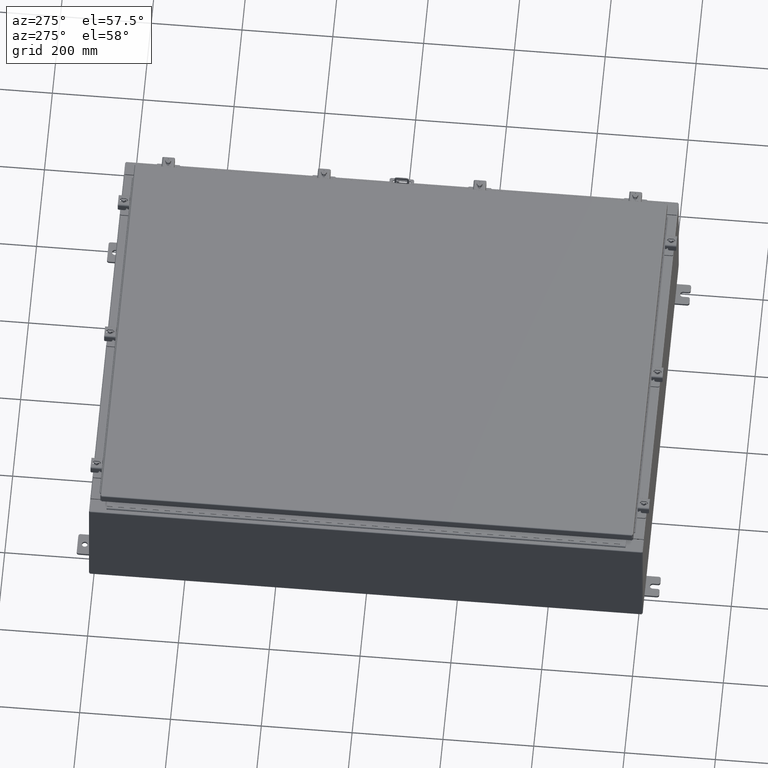
[diagram: clean part render]
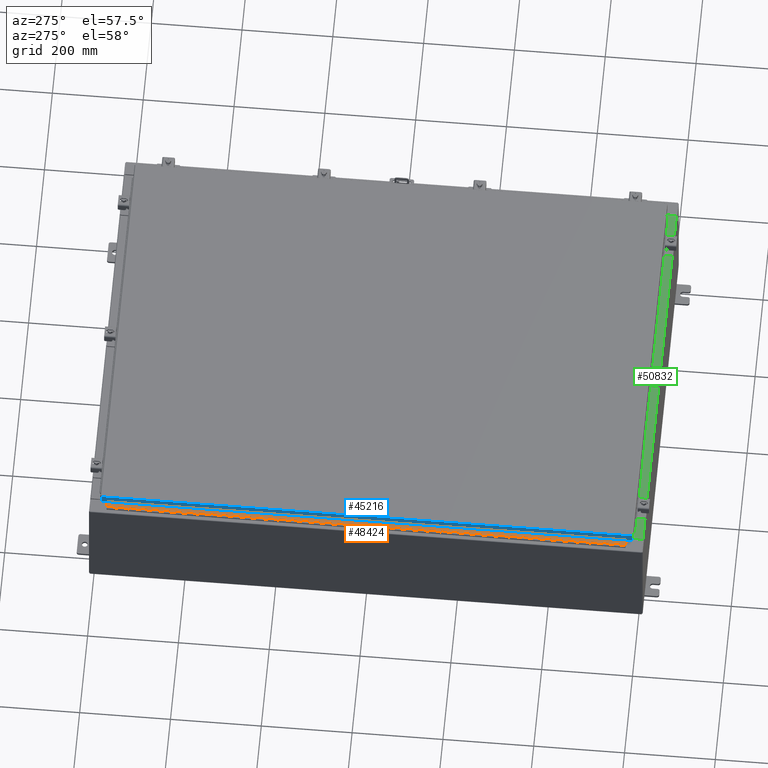
[diagram: same view with three faces highlighted in distinct colors, each labeled with its STEP entity id]
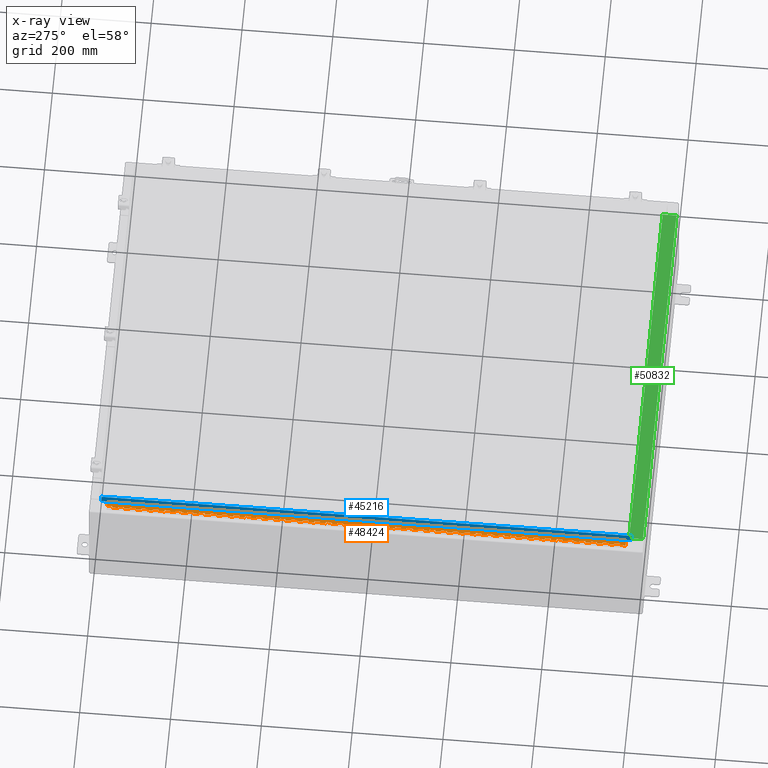
[diagram: x-ray of the same camera — body ghosted, the three highlighted faces saturated]
A machine part, auxiliary view with three faces highlighted in distinct colors.
The next image is the same camera in x-ray (body ghosted, the three faces saturated) — at least one of them is partly hidden behind the body in this view.
Their STEP definitions:

[orange] entity #48424 — the highlighted planar face has unit normal (-0, -0, 1).
#37 = EDGE_CURVE ( 'NONE', #11748, #27259, #13655, .T. ) ;
#58 = VERTEX_POINT ( 'NONE', #35768 ) ;
#176 = ORIENTED_EDGE ( 'NONE', *, *, #50581, .F. ) ;
#198 = CARTESIAN_POINT ( 'NONE',  ( -0.6869999999999987200, 0.5505000000000033200, -21.50000000000000400 ) ) ;
#203 = CARTESIAN_POINT ( 'NONE',  ( -0.6870000000000096000, 0.5505000000000120900, -10.00000000000001100 ) ) ;
#223 = ORIENTED_EDGE ( 'NONE', *, *, #55337, .F. ) ;
#282 = CARTESIAN_POINT ( 'NONE',  ( -0.6869999999999987200, 0.8005000000000176400, -20.00000000000000000 ) ) ;
#329 = LINE ( 'NONE', #7398, #54488 ) ;
#431 = VERTEX_POINT ( 'NONE', #30820 ) ;
#478 = EDGE_CURVE ( 'NONE', #15300, #23746, #34979, .T. ) ;
#567 = DIRECTION ( 'NONE',  ( 2.430677664212244400E-028, 7.991662565407430900E-030, 1.000000000000000000 ) ) ;
#578 = VERTEX_POINT ( 'NONE', #48965 ) ;
#579 = VERTEX_POINT ( 'NONE', #53297 ) ;
#613 = VERTEX_POINT ( 'NONE', #23712 ) ;
#630 = CARTESIAN_POINT ( 'NONE',  ( -0.6869999999999987200, 0.5505000000000098700, -44.49999999999998600 ) ) ;
#636 = CARTESIAN_POINT ( 'NONE',  ( -0.6870000000000074900, 0.6755000000000095400, -44.99999999999999300 ) ) ;
#643 = LINE ( 'NONE', #20776, #32009 ) ;
#653 = LINE ( 'NONE', #14287, #21976 ) ;
#668 = CARTESIAN_POINT ( 'NONE',  ( -0.6870000000000009400, 0.5505000000000098700, -34.50000000000000700 ) ) ;
#725 = CARTESIAN_POINT ( 'NONE',  ( -0.6870000000000074900, 0.8005000000000109800, -32.00000000000000000 ) ) ;
#729 = VERTEX_POINT ( 'NONE', #45431 ) ;
#815 = EDGE_CURVE ( 'NONE', #13151, #7941, #51690, .T. ) ;
#817 = VECTOR ( 'NONE', #33895, 39.37007874015748100 ) ;
#859 = VECTOR ( 'NONE', #19841, 39.37007874015748100 ) ;
#955 = LINE ( 'NONE', #36509, #45070 ) ;
#958 = ORIENTED_EDGE ( 'NONE', *, *, #21270, .F. ) ;
#1024 = LINE ( 'NONE', #7878, #22365 ) ;
#1032 = CARTESIAN_POINT ( 'NONE',  ( -0.6869999999999987200, 0.6755000000000116500, -27.50000000000000000 ) ) ;
#1039 = ORIENTED_EDGE ( 'NONE', *, *, #31401, .T. ) ;
#1046 = VECTOR ( 'NONE', #30444, 39.37007874015748100 ) ;
#1130 = VECTOR ( 'NONE', #2351, 39.37007874015748100 ) ;
#1202 = LINE ( 'NONE', #25864, #22533 ) ;
#1278 = VECTOR ( 'NONE', #13489, 39.37007874015748100 ) ;
#1289 = ORIENTED_EDGE ( 'NONE', *, *, #15356, .T. ) ;
#1301 = LINE ( 'NONE', #41817, #21309 ) ;
#1306 = ORIENTED_EDGE ( 'NONE', *, *, #20205, .T. ) ;
#1312 = VECTOR ( 'NONE', #29751, 39.37007874015748100 ) ;
#1326 = VECTOR ( 'NONE', #10651, 39.37007874015748100 ) ;
#1384 = ORIENTED_EDGE ( 'NONE', *, *, #26730, .F. ) ;
#1399 = LINE ( 'NONE', #35268, #22745 ) ;
#1400 = EDGE_CURVE ( 'NONE', #30719, #7490, #33537, .T. ) ;
#1439 = VECTOR ( 'NONE', #20321, 39.37007874015748100 ) ;
#1449 = VERTEX_POINT ( 'NONE', #31250 ) ;
#1452 = VERTEX_POINT ( 'NONE', #48456 ) ;
#1493 = LINE ( 'NONE', #42819, #35553 ) ;
#1546 = ORIENTED_EDGE ( 'NONE', *, *, #10252, .F. ) ;
#1574 = VECTOR ( 'NONE', #38571, 39.37007874015748100 ) ;
#1576 = CARTESIAN_POINT ( 'NONE',  ( -0.6869999999999987200, 0.8005000000000088700, -35.00000000000000000 ) ) ;
#1633 = DIRECTION ( 'NONE',  ( -2.430677664212244400E-028, -7.991662565407430900E-030, -1.000000000000000000 ) ) ;
#1663 = VERTEX_POINT ( 'NONE', #34819 ) ;
#1687 = DIRECTION ( 'NONE',  ( -2.430677664212244400E-028, -7.991662565407430900E-030, -1.000000000000000000 ) ) ;
#1730 = VECTOR ( 'NONE', #32445, 39.37007874015748100 ) ;
#1765 = CARTESIAN_POINT ( 'NONE',  ( -0.6869999999999987200, 0.6755000000000095400, -38.50000000000000000 ) ) ;
#1820 = CARTESIAN_POINT ( 'NONE',  ( -0.6870000000000096000, 0.5505000000000120900, -42.50000000000000000 ) ) ;
#1845 = VERTEX_POINT ( 'NONE', #27322 ) ;
#1881 = ORIENTED_EDGE ( 'NONE', *, *, #31309, .F. ) ;
#1892 = CARTESIAN_POINT ( 'NONE',  ( -0.6870000000000074900, 0.6755000000000116500, -3.499999999999999100 ) ) ;
#1909 = CARTESIAN_POINT ( 'NONE',  ( -0.6870000000000074900, 0.8005000000000088700, -42.00000000000000700 ) ) ;
#1913 = VERTEX_POINT ( 'NONE', #14992 ) ;
#2072 = DIRECTION ( 'NONE',  ( 3.389037039080700600E-015, 1.000000000000000000, 6.400528671128136300E-030 ) ) ;
#2073 = EDGE_CURVE ( 'NONE', #12857, #18282, #49557, .T. ) ;
#2145 = ORIENTED_EDGE ( 'NONE', *, *, #49634, .F. ) ;
#2188 = CARTESIAN_POINT ( 'NONE',  ( -0.6870000000000096000, 0.5505000000000098700, -24.50000000000000400 ) ) ;
#2192 = LINE ( 'NONE', #21779, #38949 ) ;
#2248 = ORIENTED_EDGE ( 'NONE', *, *, #3960, .F. ) ;
#2305 = CARTESIAN_POINT ( 'NONE',  ( -0.6869999999999987200, 0.8005000000000109800, -30.50000000000000400 ) ) ;
#2351 = DIRECTION ( 'NONE',  ( 3.389037039080700600E-015, 1.000000000000000000, 6.400528671128136300E-030 ) ) ;
#2374 = VECTOR ( 'NONE', #30898, 39.37007874015748100 ) ;
#2414 = CARTESIAN_POINT ( 'NONE',  ( -0.6870000000000096000, 0.5505000000000120900, -18.50000000000001100 ) ) ;
#2432 = LINE ( 'NONE', #13302, #12444 ) ;
#2462 = EDGE_CURVE ( 'NONE', #15651, #23200, #53531, .T. ) ;
#2515 = ORIENTED_EDGE ( 'NONE', *, *, #5675, .T. ) ;
#2562 = VERTEX_POINT ( 'NONE', #48466 ) ;
#2565 = ORIENTED_EDGE ( 'NONE', *, *, #26960, .F. ) ;
#2580 = EDGE_CURVE ( 'NONE', #18438, #13778, #39471, .T. ) ;
#2594 = CARTESIAN_POINT ( 'NONE',  ( -0.6870000000000074900, 0.8005000000000176400, -28.50000000000000000 ) ) ;
#2657 = VECTOR ( 'NONE', #24195, 39.37007874015748100 ) ;
#2706 = VECTOR ( 'NONE', #35760, 39.37007874015748100 ) ;
#2724 = VERTEX_POINT ( 'NONE', #36532 ) ;
#2736 = CARTESIAN_POINT ( 'NONE',  ( -0.6869999999999987200, 0.5505000000000120900, -25.50000000000000700 ) ) ;
#2758 = VERTEX_POINT ( 'NONE', #41382 ) ;
#2835 = VECTOR ( 'NONE', #21360, 39.37007874015748100 ) ;
#2863 = EDGE_CURVE ( 'NONE', #33772, #26798, #26015, .T. ) ;
#2866 = ORIENTED_EDGE ( 'NONE', *, *, #18035, .F. ) ;
#2933 = CARTESIAN_POINT ( 'NONE',  ( -0.6870000000000096000, 0.5505000000000098700, -14.49999999999999800 ) ) ;
#2940 = CARTESIAN_POINT ( 'NONE',  ( -0.6869999999999987200, 0.8005000000000176400, -11.50000000000000000 ) ) ;
#2947 = LINE ( 'NONE', #21333, #47042 ) ;
#3100 = EDGE_CURVE ( 'NONE', #13039, #45001, #36747, .T. ) ;
#3107 = CARTESIAN_POINT ( 'NONE',  ( -0.6870000000000096000, 0.5505000000000098700, -33.00000000000000000 ) ) ;
#3150 = EDGE_CURVE ( 'NONE', #33339, #32985, #1301, .T. ) ;
#3172 = ORIENTED_EDGE ( 'NONE', *, *, #24250, .T. ) ;
#3218 = VECTOR ( 'NONE', #51258, 39.37007874015748100 ) ;
#3312 = DIRECTION ( 'NONE',  ( -3.389037039080700600E-015, -1.000000000000000000, -6.400528671128136300E-030 ) ) ;
#3313 = EDGE_CURVE ( 'NONE', #17967, #31763, #38718, .T. ) ;
#3341 = CARTESIAN_POINT ( 'NONE',  ( -0.6869999999999987200, 0.8005000000000109800, -24.50000000000000000 ) ) ;
#3373 = DIRECTION ( 'NONE',  ( 2.430677664212244400E-028, 7.991662565407430900E-030, 1.000000000000000000 ) ) ;
#3450 = VECTOR ( 'NONE', #30017, 39.37007874015748100 ) ;
#3475 = CARTESIAN_POINT ( 'NONE',  ( -0.6870000000000096000, 0.5505000000000011000, -33.50000000000000000 ) ) ;
#3482 = LINE ( 'NONE', #12510, #4803 ) ;
#3487 = CARTESIAN_POINT ( 'NONE',  ( -0.6869999999999987200, 0.6755000000000116500, -10.50000000000000000 ) ) ;
#3561 = VERTEX_POINT ( 'NONE', #52956 ) ;
#3565 = VECTOR ( 'NONE', #17130, 39.37007874015748100 ) ;
#3634 = LINE ( 'NONE', #24405, #37700 ) ;
#3650 = CARTESIAN_POINT ( 'NONE',  ( -0.6869999999999987200, 0.5505000000000120900, -30.50000000000000400 ) ) ;
#3688 = DIRECTION ( 'NONE',  ( 3.389037039080700600E-015, 1.000000000000000000, 6.400528671128136300E-030 ) ) ;
#3766 = VERTEX_POINT ( 'NONE', #45867 ) ;
#3907 = VERTEX_POINT ( 'NONE', #22997 ) ;
#3918 = CARTESIAN_POINT ( 'NONE',  ( -0.6870000000000074900, 0.6755000000000095400, -44.99999999999999300 ) ) ;
#3937 = ORIENTED_EDGE ( 'NONE', *, *, #40679, .T. ) ;
#3960 = EDGE_CURVE ( 'NONE', #8572, #49319, #21318, .T. ) ;
#4022 = LINE ( 'NONE', #9996, #25336 ) ;
#4050 = CARTESIAN_POINT ( 'NONE',  ( -0.6870000000000074900, 0.6755000000000116500, -1.999999999999998400 ) ) ;
#4080 = CARTESIAN_POINT ( 'NONE',  ( -0.6869999999999987200, 0.6755000000000095400, -19.50000000000001100 ) ) ;
#4081 = VECTOR ( 'NONE', #6126, 39.37007874015748100 ) ;
#4094 = VERTEX_POINT ( 'NONE', #15896 ) ;
#4106 = ORIENTED_EDGE ( 'NONE', *, *, #49886, .F. ) ;
#4109 = VERTEX_POINT ( 'NONE', #33082 ) ;
#4241 = DIRECTION ( 'NONE',  ( 3.389037039080700600E-015, 1.000000000000000000, 6.400528671128136300E-030 ) ) ;
#4270 = LINE ( 'NONE', #17032, #1574 ) ;
#4334 = VECTOR ( 'NONE', #37533, 39.37007874015748100 ) ;
#4361 = ORIENTED_EDGE ( 'NONE', *, *, #38786, .F. ) ;
#4386 = DIRECTION ( 'NONE',  ( 2.430677664212244400E-028, 7.991662565407430900E-030, 1.000000000000000000 ) ) ;
#4406 = VERTEX_POINT ( 'NONE', #47822 ) ;
#4440 = LINE ( 'NONE', #15152, #37203 ) ;
#4465 = ORIENTED_EDGE ( 'NONE', *, *, #45350, .F. ) ;
#4473 = VERTEX_POINT ( 'NONE', #18450 ) ;
#4477 = CARTESIAN_POINT ( 'NONE',  ( -0.6870000000000009400, 0.5505000000000120900, -44.00000000000000000 ) ) ;
#4520 = EDGE_CURVE ( 'NONE', #39719, #45993, #19935, .T. ) ;
#4530 = ORIENTED_EDGE ( 'NONE', *, *, #14676, .F. ) ;
#4532 = VECTOR ( 'NONE', #23040, 39.37007874015748100 ) ;
#4574 = VECTOR ( 'NONE', #39663, 39.37007874015748100 ) ;
#4577 = DIRECTION ( 'NONE',  ( 3.389037039080700600E-015, 1.000000000000000000, 6.400528671128136300E-030 ) ) ;
#4690 = EDGE_CURVE ( 'NONE', #15751, #32759, #40405, .T. ) ;
#4729 = EDGE_CURVE ( 'NONE', #15968, #28475, #3634, .T. ) ;
#4776 = VERTEX_POINT ( 'NONE', #37703 ) ;
#4803 = VECTOR ( 'NONE', #8221, 39.37007874015748100 ) ;
#4845 = VERTEX_POINT ( 'NONE', #25124 ) ;
#5078 = CARTESIAN_POINT ( 'NONE',  ( -0.6870000000000074900, 0.8005000000000109800, -33.00000000000000000 ) ) ;
#5094 = LINE ( 'NONE', #39780, #25082 ) ;
#5220 = VERTEX_POINT ( 'NONE', #2414 ) ;
#5235 = ORIENTED_EDGE ( 'NONE', *, *, #13229, .T. ) ;
#5318 = LINE ( 'NONE', #25815, #13970 ) ;
#5330 = EDGE_CURVE ( 'NONE', #39567, #33911, #40411, .T. ) ;
#5385 = VECTOR ( 'NONE', #50386, 39.37007874015748100 ) ;
#5428 = DIRECTION ( 'NONE',  ( 2.430677664212244400E-028, 7.991662565407430900E-030, 1.000000000000000000 ) ) ;
#5462 = CARTESIAN_POINT ( 'NONE',  ( -0.6869999999999987200, 0.6755000000000116500, 0.0000000000000000000 ) ) ;
#5509 = ORIENTED_EDGE ( 'NONE', *, *, #10210, .T. ) ;
#5558 = EDGE_CURVE ( 'NONE', #33772, #50255, #8287, .T. ) ;
#5639 = ORIENTED_EDGE ( 'NONE', *, *, #45838, .F. ) ;
#5675 = EDGE_CURVE ( 'NONE', #19384, #35913, #14246, .T. ) ;
#5763 = EDGE_CURVE ( 'NONE', #41554, #43044, #21574, .T. ) ;
#5802 = DIRECTION ( 'NONE',  ( -2.430677664212244400E-028, -7.991662565407430900E-030, -1.000000000000000000 ) ) ;
#5844 = CARTESIAN_POINT ( 'NONE',  ( -0.6870000000000074900, 0.5505000000000120900, -20.00000000000000000 ) ) ;
#5881 = DIRECTION ( 'NONE',  ( 3.389037039080700600E-015, 1.000000000000000000, 6.400528671128136300E-030 ) ) ;
#5916 = DIRECTION ( 'NONE',  ( 3.389037039080700600E-015, 1.000000000000000000, 6.400528671128136300E-030 ) ) ;
#5942 = CARTESIAN_POINT ( 'NONE',  ( -0.6870000000000096000, 0.5505000000000011000, -4.500000000000002700 ) ) ;
#6063 = VERTEX_POINT ( 'NONE', #8292 ) ;
#6126 = DIRECTION ( 'NONE',  ( -2.430677664212244400E-028, -7.991662565407430900E-030, -1.000000000000000000 ) ) ;
#6182 = VERTEX_POINT ( 'NONE', #34584 ) ;
#6220 = EDGE_CURVE ( 'NONE', #37987, #1452, #11550, .T. ) ;
#6226 = CARTESIAN_POINT ( 'NONE',  ( -0.6870000000000074900, 0.6755000000000204200, -11.50000000000000000 ) ) ;
#6319 = VECTOR ( 'NONE', #54529, 39.37007874015748100 ) ;
#6355 = EDGE_CURVE ( 'NONE', #4094, #9363, #26190, .T. ) ;
#6460 = CARTESIAN_POINT ( 'NONE',  ( -0.6870000000000052700, -0.6245000000000002800, -45.00000000000000700 ) ) ;
#6565 = LINE ( 'NONE', #32804, #47952 ) ;
#6572 = EDGE_CURVE ( 'NONE', #579, #17807, #28190, .T. ) ;
#6622 = DIRECTION ( 'NONE',  ( -3.389037039080700600E-015, -1.000000000000000000, -6.400528671128136300E-030 ) ) ;
#6714 = DIRECTION ( 'NONE',  ( -2.430677664212244400E-028, -7.991662565407430900E-030, -1.000000000000000000 ) ) ;
#6824 = LINE ( 'NONE', #41669, #48211 ) ;
#6887 = ORIENTED_EDGE ( 'NONE', *, *, #46416, .T. ) ;
#6925 = VERTEX_POINT ( 'NONE', #21437 ) ;
#6930 = CARTESIAN_POINT ( 'NONE',  ( -0.6870000000000074900, 0.6755000000000095400, -44.99999999999999300 ) ) ;
#6969 = DIRECTION ( 'NONE',  ( -3.389037039080700600E-015, -1.000000000000000000, -6.400528671128136300E-030 ) ) ;
#6975 = DIRECTION ( 'NONE',  ( -3.389037039080700600E-015, -1.000000000000000000, -6.400528671128136300E-030 ) ) ;
#7011 = CARTESIAN_POINT ( 'NONE',  ( -0.6870000000000074900, 0.5505000000000098700, -43.49999999999999300 ) ) ;
#7017 = LINE ( 'NONE', #282, #28355 ) ;
#7136 = CARTESIAN_POINT ( 'NONE',  ( -0.6870000000000096000, 0.5505000000000098700, -23.00000000000000000 ) ) ;
#7146 = CARTESIAN_POINT ( 'NONE',  ( -0.6869999999999987200, 0.8005000000000109800, -44.00000000000001400 ) ) ;
#7312 = VECTOR ( 'NONE', #29048, 39.37007874015748100 ) ;
#7332 = VECTOR ( 'NONE', #48021, 39.37007874015748100 ) ;
#7363 = ORIENTED_EDGE ( 'NONE', *, *, #43318, .F. ) ;
#7378 = VERTEX_POINT ( 'NONE', #12670 ) ;
#7398 = CARTESIAN_POINT ( 'NONE',  ( -0.6870000000000074900, 0.8005000000000109800, -8.500000000000000000 ) ) ;
#7402 = CARTESIAN_POINT ( 'NONE',  ( -0.6869999999999987200, 0.5505000000000098700, -36.50000000000000000 ) ) ;
#7435 = VECTOR ( 'NONE', #5802, 39.37007874015748100 ) ;
#7436 = CARTESIAN_POINT ( 'NONE',  ( -0.6870000000000074900, 0.6755000000000095400, -44.99999999999999300 ) ) ;
#7490 = VERTEX_POINT ( 'NONE', #9116 ) ;
#7554 = CARTESIAN_POINT ( 'NONE',  ( -0.6870000000000074900, 0.6755000000000116500, -35.50000000000000000 ) ) ;
#7559 = VECTOR ( 'NONE', #27568, 39.37007874015748100 ) ;
#7603 = CARTESIAN_POINT ( 'NONE',  ( -0.6870000000000096000, 0.5505000000000120900, -28.50000000000000000 ) ) ;
#7661 = CARTESIAN_POINT ( 'NONE',  ( -0.6870000000000074900, 0.6755000000000095400, -44.99999999999999300 ) ) ;
#7680 = VERTEX_POINT ( 'NONE', #52995 ) ;
#7689 = EDGE_CURVE ( 'NONE', #47459, #27884, #54179, .T. ) ;
#7734 = EDGE_LOOP ( 'NONE', ( #38325, #26323, #20385, #28379, #18327, #33936, #14701, #958, #1039, #13868, #48331, #15576, #5235, #53694, #41712, #33049, #43738, #33687, #26513, #7363, #50397, #26345, #176, #47951, #22252, #9198, #22149, #1546, #16931, #26261, #37676, #17328, #1289, #54353, #20295, #35501, #19134, #37693, #24496, #27467, #5509, #53737, #30234, #223, #1306, #51379, #45620, #37030, #29449, #25785, #48388, #41241, #8750, #46273, #26214, #14153, #14154, #29314, #2565, #24565, #42315, #12067, #31090, #32144, #26424, #14010, #40225, #25239, #53623, #8151, #44683, #41967, #17157, #48952, #40125, #4465, #43677, #34437, #53470, #1384, #9196, #36401, #9066, #29903, #3172, #12498, #31495, #22627, #21083, #44890, #39781, #47393, #25351, #48578, #30306, #4361, #22488, #53934, #39205, #4106, #3937, #26386, #37509, #27569, #18565, #1881, #31146, #47013, #53804, #39224, #13728, #53201, #53540, #7907, #51789, #31402, #32891, #15897, #4530, #13737, #6887, #13597, #11777, #20366, #24356, #21464, #36989, #35676, #26673, #26812, #42618, #32529, #9052, #2145, #18867, #39818, #25659, #5639, #16746, #43619, #51985, #54783, #33476, #36577, #15099, #14325, #51573, #2866, #35043, #32336, #29623, #10741, #48913, #35882, #27280, #48821, #51910, #31771, #19621, #34112, #29516, #47959, #30506, #32446, #37454, #30114, #41238, #42653, #30037, #13074, #14351, #2248, #16671, #22087, #19144, #13110, #13683, #31344, #45508, #11077, #2515, #11318 ) ) ;
#7840 = LINE ( 'NONE', #44122, #31866 ) ;
#7855 = CARTESIAN_POINT ( 'NONE',  ( -0.6870000000000074900, 0.8005000000000088700, -0.9999999999999992200 ) ) ;
#7878 = CARTESIAN_POINT ( 'NONE',  ( -0.6870000000000074900, 0.6755000000000095400, -44.99999999999999300 ) ) ;
#7893 = EDGE_CURVE ( 'NONE', #47799, #25637, #33390, .T. ) ;
#7907 = ORIENTED_EDGE ( 'NONE', *, *, #30692, .F. ) ;
#7934 = DIRECTION ( 'NONE',  ( 2.430677664212244400E-028, 7.991662565407430900E-030, 1.000000000000000000 ) ) ;
#7940 = DIRECTION ( 'NONE',  ( -2.430677664212244400E-028, -7.991662565407430900E-030, -1.000000000000000000 ) ) ;
#7941 = VERTEX_POINT ( 'NONE', #37836 ) ;
#7960 = CARTESIAN_POINT ( 'NONE',  ( -0.6869999999999987200, 0.6755000000000204200, -37.00000000000000000 ) ) ;
#8065 = LINE ( 'NONE', #21905, #40814 ) ;
#8067 = EDGE_CURVE ( 'NONE', #13151, #18475, #35359, .T. ) ;
#8135 = VERTEX_POINT ( 'NONE', #34596 ) ;
#8151 = ORIENTED_EDGE ( 'NONE', *, *, #20683, .F. ) ;
#8196 = CARTESIAN_POINT ( 'NONE',  ( -0.6869999999999987200, 0.8005000000000109800, -11.00000000000000000 ) ) ;
#8221 = DIRECTION ( 'NONE',  ( 3.369016658928375700E-015, 1.000000000000000000, 6.409928127395333600E-030 ) ) ;
#8261 = EDGE_CURVE ( 'NONE', #18438, #22476, #25979, .T. ) ;
#8287 = LINE ( 'NONE', #47547, #9594 ) ;
#8290 = LINE ( 'NONE', #46264, #35652 ) ;
#8292 = CARTESIAN_POINT ( 'NONE',  ( -0.6869999999999987200, 0.5505000000000098700, -36.50000000000000000 ) ) ;
#8298 = CARTESIAN_POINT ( 'NONE',  ( -0.6869999999999987200, 0.8005000000000109800, -39.49999999999999300 ) ) ;
#8448 = EDGE_CURVE ( 'NONE', #31087, #39084, #50741, .T. ) ;
#8498 = DIRECTION ( 'NONE',  ( 2.430677664212244400E-028, 7.991662565407430900E-030, 1.000000000000000000 ) ) ;
#8529 = LINE ( 'NONE', #51563, #49997 ) ;
#8565 = DIRECTION ( 'NONE',  ( 3.389037039080700600E-015, 1.000000000000000000, 6.400528671128136300E-030 ) ) ;
#8572 = VERTEX_POINT ( 'NONE', #20348 ) ;
#8729 = DIRECTION ( 'NONE',  ( -3.389037039080700600E-015, -1.000000000000000000, -6.400528671128136300E-030 ) ) ;
#8750 = ORIENTED_EDGE ( 'NONE', *, *, #11473, .T. ) ;
#8751 = CARTESIAN_POINT ( 'NONE',  ( -0.6870000000000096000, 0.5505000000000120900, -15.00000000000000000 ) ) ;
#8786 = EDGE_CURVE ( 'NONE', #42560, #3561, #23249, .T. ) ;
#8799 = VERTEX_POINT ( 'NONE', #9318 ) ;
#8830 = CARTESIAN_POINT ( 'NONE',  ( -0.6870000000000096000, 0.6755000000000116500, -39.00000000000000000 ) ) ;
#8848 = DIRECTION ( 'NONE',  ( 3.389037039080700600E-015, 1.000000000000000000, 6.400528671128136300E-030 ) ) ;
#8871 = LINE ( 'NONE', #31886, #40316 ) ;
#9006 = VERTEX_POINT ( 'NONE', #53039 ) ;
#9052 = ORIENTED_EDGE ( 'NONE', *, *, #14147, .T. ) ;
#9065 = CARTESIAN_POINT ( 'NONE',  ( -0.6870000000000074900, 0.6755000000000095400, -44.99999999999999300 ) ) ;
#9066 = ORIENTED_EDGE ( 'NONE', *, *, #49525, .F. ) ;
#9075 = EDGE_CURVE ( 'NONE', #24855, #32759, #54031, .T. ) ;
#9110 = DIRECTION ( 'NONE',  ( 2.430677664212244400E-028, 7.991662565407430900E-030, 1.000000000000000000 ) ) ;
#9116 = CARTESIAN_POINT ( 'NONE',  ( -0.6869999999999987200, 0.5505000000000098700, -7.000000000000000900 ) ) ;
#9154 = CARTESIAN_POINT ( 'NONE',  ( -0.6869999999999987200, 0.5505000000000098700, -31.50000000000000400 ) ) ;
#9196 = ORIENTED_EDGE ( 'NONE', *, *, #20618, .T. ) ;
#9198 = ORIENTED_EDGE ( 'NONE', *, *, #7689, .F. ) ;
#9213 = CARTESIAN_POINT ( 'NONE',  ( -0.6870000000000074900, 0.6755000000000116500, -22.00000000000000000 ) ) ;
#9284 = CARTESIAN_POINT ( 'NONE',  ( -0.6870000000000074900, 0.6755000000000095400, -44.99999999999999300 ) ) ;
#9294 = EDGE_CURVE ( 'NONE', #15968, #4406, #20525, .T. ) ;
#9318 = CARTESIAN_POINT ( 'NONE',  ( -0.6870000000000096000, 0.6755000000000116500, -44.00000000000000000 ) ) ;
#9359 = LINE ( 'NONE', #21349, #44808 ) ;
#9363 = VERTEX_POINT ( 'NONE', #43662 ) ;
#9564 = CARTESIAN_POINT ( 'NONE',  ( -0.6870000000000074900, 0.6755000000000095400, -44.99999999999999300 ) ) ;
#9594 = VECTOR ( 'NONE', #21919, 39.37007874015748100 ) ;
#9714 = LINE ( 'NONE', #5078, #53876 ) ;
#9747 = DIRECTION ( 'NONE',  ( -3.389037039080700600E-015, -1.000000000000000000, -6.400528671128136300E-030 ) ) ;
#9751 = DIRECTION ( 'NONE',  ( -2.430677664212244400E-028, -7.991662565407430900E-030, -1.000000000000000000 ) ) ;
#9754 = DIRECTION ( 'NONE',  ( -3.389037039080700600E-015, -1.000000000000000000, -6.400528671128136300E-030 ) ) ;
#9775 = CARTESIAN_POINT ( 'NONE',  ( -0.6869999999999987200, 0.5505000000000120900, -13.50000000000000000 ) ) ;
#9791 = VECTOR ( 'NONE', #32864, 39.37007874015748100 ) ;
#9944 = CARTESIAN_POINT ( 'NONE',  ( -0.6869999999999987200, 0.5505000000000120900, -40.50000000000000000 ) ) ;
#9987 = LINE ( 'NONE', #23596, #42755 ) ;
#9996 = CARTESIAN_POINT ( 'NONE',  ( -0.6870000000000096000, 0.5505000000000098700, -24.50000000000000400 ) ) ;
#10064 = VERTEX_POINT ( 'NONE', #14219 ) ;
#10199 = EDGE_CURVE ( 'NONE', #46441, #37162, #49918, .T. ) ;
#10210 = EDGE_CURVE ( 'NONE', #21650, #51062, #4440, .T. ) ;
#10249 = VECTOR ( 'NONE', #18899, 39.37007874015748100 ) ;
#10252 = EDGE_CURVE ( 'NONE', #53803, #47708, #47209, .T. ) ;
#10276 = CARTESIAN_POINT ( 'NONE',  ( -0.6869999999999987200, 0.5505000000000098700, -27.50000000000000000 ) ) ;
#10431 = VECTOR ( 'NONE', #25366, 39.37007874015748100 ) ;
#10489 = EDGE_CURVE ( 'NONE', #18799, #17807, #15067, .T. ) ;
#10490 = VECTOR ( 'NONE', #35134, 39.37007874015748100 ) ;
#10520 = LINE ( 'NONE', #13479, #44626 ) ;
#10558 = CARTESIAN_POINT ( 'NONE',  ( -0.6869999999999987200, 0.8005000000000109800, -25.50000000000000400 ) ) ;
#10568 = EDGE_CURVE ( 'NONE', #9006, #6063, #32444, .T. ) ;
#10586 = VECTOR ( 'NONE', #17698, 39.37007874015748100 ) ;
#10638 = CARTESIAN_POINT ( 'NONE',  ( -0.6869999999999987200, 0.6755000000000095400, -4.500000000000002700 ) ) ;
#10651 = DIRECTION ( 'NONE',  ( -2.430677664212244400E-028, -7.991662565407430900E-030, -1.000000000000000000 ) ) ;
#10668 = CARTESIAN_POINT ( 'NONE',  ( -0.6869999999999965000, 0.8005000000000176400, -3.000000000000001800 ) ) ;
#10690 = VECTOR ( 'NONE', #29039, 39.37007874015748100 ) ;
#10703 = VECTOR ( 'NONE', #38165, 39.37007874015748100 ) ;
#10728 = EDGE_CURVE ( 'NONE', #16942, #18398, #24379, .T. ) ;
#10741 = ORIENTED_EDGE ( 'NONE', *, *, #37738, .F. ) ;
#10930 = EDGE_CURVE ( 'NONE', #25073, #22829, #16350, .T. ) ;
#10968 = LINE ( 'NONE', #45283, #34998 ) ;
#10979 = VERTEX_POINT ( 'NONE', #27418 ) ;
#10996 = VECTOR ( 'NONE', #22852, 39.37007874015748100 ) ;
#11058 = CARTESIAN_POINT ( 'NONE',  ( -0.6870000000000074900, 0.6755000000000116500, -11.99999999999999800 ) ) ;
#11060 = CARTESIAN_POINT ( 'NONE',  ( -0.6869999999999987200, 0.8005000000000109800, -7.500000000000000000 ) ) ;
#11065 = VECTOR ( 'NONE', #43368, 39.37007874015748100 ) ;
#11077 = ORIENTED_EDGE ( 'NONE', *, *, #44120, .F. ) ;
#11087 = DIRECTION ( 'NONE',  ( 2.430677664212244400E-028, 7.991662565407430900E-030, 1.000000000000000000 ) ) ;
#11092 = CARTESIAN_POINT ( 'NONE',  ( -0.6869999999999987200, 0.6755000000000095400, -12.99999999999999800 ) ) ;
#11196 = EDGE_CURVE ( 'NONE', #35027, #17916, #51120, .T. ) ;
#11216 = EDGE_CURVE ( 'NONE', #10064, #8135, #37101, .T. ) ;
#11240 = CARTESIAN_POINT ( 'NONE',  ( -0.6869999999999987200, 0.5505000000000098700, -12.00000000000000900 ) ) ;
#11258 = CARTESIAN_POINT ( 'NONE',  ( -0.6870000000000074900, 0.6755000000000095400, -21.00000000000000000 ) ) ;
#11296 = VECTOR ( 'NONE', #39475, 39.37007874015748100 ) ;
#11318 = ORIENTED_EDGE ( 'NONE', *, *, #54674, .F. ) ;
#11320 = VERTEX_POINT ( 'NONE', #33940 ) ;
#11405 = DIRECTION ( 'NONE',  ( 3.389037039080700600E-015, 1.000000000000000000, 6.400528671128136300E-030 ) ) ;
#11473 = EDGE_CURVE ( 'NONE', #46441, #1449, #37714, .T. ) ;
#11485 = CARTESIAN_POINT ( 'NONE',  ( -0.6870000000000074900, 0.5505000000000098700, -43.49999999999999300 ) ) ;
#11550 = LINE ( 'NONE', #26343, #21528 ) ;
#11565 = DIRECTION ( 'NONE',  ( 3.389037039080700600E-015, 1.000000000000000000, 6.400528671128136300E-030 ) ) ;
#11588 = CARTESIAN_POINT ( 'NONE',  ( -0.6869999999999987200, 0.5505000000000098700, -22.50000000000000000 ) ) ;
#11724 = DIRECTION ( 'NONE',  ( 2.430677664212244400E-028, 7.991662565407430900E-030, 1.000000000000000000 ) ) ;
#11748 = VERTEX_POINT ( 'NONE', #2736 ) ;
#11775 = LINE ( 'NONE', #19727, #44526 ) ;
#11777 = ORIENTED_EDGE ( 'NONE', *, *, #33408, .F. ) ;
#11829 = CARTESIAN_POINT ( 'NONE',  ( -0.6869999999999987200, 0.5505000000000098700, -12.50000000000000900 ) ) ;
#11907 = CARTESIAN_POINT ( 'NONE',  ( -0.6870000000000074900, 0.8005000000000088700, -4.500000000000002700 ) ) ;
#12052 = LINE ( 'NONE', #20957, #33402 ) ;
#12067 = ORIENTED_EDGE ( 'NONE', *, *, #51453, .F. ) ;
#12069 = CARTESIAN_POINT ( 'NONE',  ( -0.6870000000000096000, 0.5505000000000120900, -37.50000000000000700 ) ) ;
#12129 = DIRECTION ( 'NONE',  ( 3.389037039080700600E-015, 1.000000000000000000, 6.400528671128136300E-030 ) ) ;
#12130 = VECTOR ( 'NONE', #50963, 39.37007874015748100 ) ;
#12131 = LINE ( 'NONE', #38459, #54922 ) ;
#12141 = CARTESIAN_POINT ( 'NONE',  ( -0.6869999999999987200, 0.5505000000000120900, -11.50000000000001100 ) ) ;
#12153 = DIRECTION ( 'NONE',  ( 2.430677664212244400E-028, 7.991662565407430900E-030, 1.000000000000000000 ) ) ;
#12172 = LINE ( 'NONE', #15983, #817 ) ;
#12213 = EDGE_CURVE ( 'NONE', #17062, #25073, #955, .T. ) ;
#12243 = EDGE_CURVE ( 'NONE', #29180, #17916, #10968, .T. ) ;
#12269 = LINE ( 'NONE', #20441, #34963 ) ;
#12362 = VECTOR ( 'NONE', #12129, 39.37007874015748100 ) ;
#12409 = LINE ( 'NONE', #43379, #1046 ) ;
#12444 = VECTOR ( 'NONE', #30286, 39.37007874015748100 ) ;
#12470 = CARTESIAN_POINT ( 'NONE',  ( -0.6870000000000074900, 0.5505000000000098700, -10.50000000000001100 ) ) ;
#12486 = LINE ( 'NONE', #23576, #1130 ) ;
#12487 = LINE ( 'NONE', #7146, #21131 ) ;
#12498 = ORIENTED_EDGE ( 'NONE', *, *, #2462, .F. ) ;
#12510 = CARTESIAN_POINT ( 'NONE',  ( -0.6870000000000030500, -0.6244999999999915100, 0.0000000000000000000 ) ) ;
#12520 = VECTOR ( 'NONE', #15764, 39.37007874015748100 ) ;
#12642 = CARTESIAN_POINT ( 'NONE',  ( -0.6869999999999987200, 0.6755000000000095400, -5.999999999999999100 ) ) ;
#12646 = VECTOR ( 'NONE', #54480, 39.37007874015748100 ) ;
#12670 = CARTESIAN_POINT ( 'NONE',  ( -0.6869999999999987200, 0.5505000000000120900, -22.00000000000000000 ) ) ;
#12707 = DIRECTION ( 'NONE',  ( 3.389037039080700600E-015, 1.000000000000000000, 6.400528671128136300E-030 ) ) ;
#12712 = DIRECTION ( 'NONE',  ( -2.430677664212244400E-028, -7.991662565407430900E-030, -1.000000000000000000 ) ) ;
#12834 = LINE ( 'NONE', #32673, #22809 ) ;
#12857 = VERTEX_POINT ( 'NONE', #45221 ) ;
#12865 = CARTESIAN_POINT ( 'NONE',  ( -0.6869999999999965000, 0.8005000000000197500, -40.50000000000000700 ) ) ;
#12880 = CARTESIAN_POINT ( 'NONE',  ( -0.6870000000000074900, 0.6755000000000095400, -44.99999999999999300 ) ) ;
#12918 = VERTEX_POINT ( 'NONE', #19949 ) ;
#13039 = VERTEX_POINT ( 'NONE', #20858 ) ;
#13046 = VECTOR ( 'NONE', #44080, 39.37007874015748100 ) ;
#13051 = VERTEX_POINT ( 'NONE', #25147 ) ;
#13057 = DIRECTION ( 'NONE',  ( -2.430677664212244400E-028, -7.991662565407430900E-030, -1.000000000000000000 ) ) ;
#13074 = ORIENTED_EDGE ( 'NONE', *, *, #28127, .F. ) ;
#13110 = ORIENTED_EDGE ( 'NONE', *, *, #21988, .F. ) ;
#13119 = VERTEX_POINT ( 'NONE', #4477 ) ;
#13151 = VERTEX_POINT ( 'NONE', #17468 ) ;
#13178 = LINE ( 'NONE', #52963, #4532 ) ;
#13179 = EDGE_CURVE ( 'NONE', #1913, #2562, #2192, .T. ) ;
#13184 = CARTESIAN_POINT ( 'NONE',  ( -0.6870000000000074900, 0.5505000000000098700, -29.50000000000000000 ) ) ;
#13229 = EDGE_CURVE ( 'NONE', #34212, #28445, #55000, .T. ) ;
#13235 = CARTESIAN_POINT ( 'NONE',  ( -0.6870000000000074900, 0.6755000000000095400, -44.99999999999999300 ) ) ;
#13302 = CARTESIAN_POINT ( 'NONE',  ( -0.6870000000000074900, 0.5505000000000098700, -20.50000000000000700 ) ) ;
#13335 = VECTOR ( 'NONE', #7934, 39.37007874015748100 ) ;
#13368 = CARTESIAN_POINT ( 'NONE',  ( -0.6870000000000074900, 0.8005000000000088700, -12.99999999999999800 ) ) ;
#13393 = DIRECTION ( 'NONE',  ( 3.389037039080700600E-015, 1.000000000000000000, 6.400528671128136300E-030 ) ) ;
#13479 = CARTESIAN_POINT ( 'NONE',  ( -0.6869999999999987200, 0.5505000000000098700, -2.500000000000000000 ) ) ;
#13489 = DIRECTION ( 'NONE',  ( 2.430677664212244400E-028, 7.991662565407430900E-030, 1.000000000000000000 ) ) ;
#13597 = ORIENTED_EDGE ( 'NONE', *, *, #5763, .F. ) ;
#13618 = LINE ( 'NONE', #27937, #49076 ) ;
#13655 = LINE ( 'NONE', #35370, #10996 ) ;
#13683 = ORIENTED_EDGE ( 'NONE', *, *, #52266, .T. ) ;
#13728 = ORIENTED_EDGE ( 'NONE', *, *, #17243, .F. ) ;
#13737 = ORIENTED_EDGE ( 'NONE', *, *, #16610, .F. ) ;
#13778 = VERTEX_POINT ( 'NONE', #53248 ) ;
#13835 = VERTEX_POINT ( 'NONE', #36606 ) ;
#13868 = ORIENTED_EDGE ( 'NONE', *, *, #26290, .F. ) ;
#13941 = VECTOR ( 'NONE', #567, 39.37007874015748100 ) ;
#13953 = LINE ( 'NONE', #7402, #12646 ) ;
#13970 = VECTOR ( 'NONE', #47158, 39.37007874015748100 ) ;
#14010 = ORIENTED_EDGE ( 'NONE', *, *, #52393, .F. ) ;
#14079 = LINE ( 'NONE', #725, #46883 ) ;
#14124 = LINE ( 'NONE', #45021, #24140 ) ;
#14147 = EDGE_CURVE ( 'NONE', #16769, #41031, #23416, .T. ) ;
#14153 = ORIENTED_EDGE ( 'NONE', *, *, #25402, .F. ) ;
#14154 = ORIENTED_EDGE ( 'NONE', *, *, #6572, .T. ) ;
#14219 = CARTESIAN_POINT ( 'NONE',  ( -0.6870000000000074900, 0.6755000000000095400, -26.50000000000000400 ) ) ;
#14246 = LINE ( 'NONE', #48272, #24256 ) ;
#14287 = CARTESIAN_POINT ( 'NONE',  ( -0.6869999999999987200, 0.8005000000000109800, -6.999999999999998200 ) ) ;
#14292 = CARTESIAN_POINT ( 'NONE',  ( -0.6869999999999987200, 0.6755000000000095400, -41.49999999999998600 ) ) ;
#14325 = ORIENTED_EDGE ( 'NONE', *, *, #4690, .F. ) ;
#14351 = ORIENTED_EDGE ( 'NONE', *, *, #23118, .F. ) ;
#14465 = CARTESIAN_POINT ( 'NONE',  ( -0.6870000000000074900, 0.6755000000000095400, -44.99999999999999300 ) ) ;
#14503 = EDGE_CURVE ( 'NONE', #24855, #46634, #40162, .T. ) ;
#14523 = LINE ( 'NONE', #8298, #3218 ) ;
#14594 = LINE ( 'NONE', #1909, #37364 ) ;
#14676 = EDGE_CURVE ( 'NONE', #35802, #58, #12052, .T. ) ;
#14681 = VERTEX_POINT ( 'NONE', #33862 ) ;
#14693 = CARTESIAN_POINT ( 'NONE',  ( -0.6870000000000096000, 0.5505000000000098700, -5.499999999999997300 ) ) ;
#14701 = ORIENTED_EDGE ( 'NONE', *, *, #42407, .F. ) ;
#14702 = CARTESIAN_POINT ( 'NONE',  ( -0.6870000000000074900, 0.6755000000000182000, -40.49999999999999300 ) ) ;
#14703 = EDGE_CURVE ( 'NONE', #37162, #26899, #54843, .T. ) ;
#14705 = LINE ( 'NONE', #16511, #24705 ) ;
#14961 = VERTEX_POINT ( 'NONE', #5844 ) ;
#14992 = CARTESIAN_POINT ( 'NONE',  ( -0.6870000000000096000, 0.07550000000000989300, -45.00000000000000000 ) ) ;
#15067 = LINE ( 'NONE', #55323, #25065 ) ;
#15085 = VERTEX_POINT ( 'NONE', #45055 ) ;
#15099 = ORIENTED_EDGE ( 'NONE', *, *, #9075, .T. ) ;
#15105 = DIRECTION ( 'NONE',  ( -3.389037039080700600E-015, -1.000000000000000000, -6.400528671128136300E-030 ) ) ;
#15152 = CARTESIAN_POINT ( 'NONE',  ( -0.6870000000000074900, 0.6755000000000095400, -44.99999999999999300 ) ) ;
#15159 = LINE ( 'NONE', #36077, #46619 ) ;
#15248 = LINE ( 'NONE', #9775, #49375 ) ;
#15257 = CARTESIAN_POINT ( 'NONE',  ( -0.6869999999999987200, 0.5505000000000098700, -3.499999999999999100 ) ) ;
#15274 = EDGE_CURVE ( 'NONE', #3766, #52268, #30660, .T. ) ;
#15296 = EDGE_CURVE ( 'NONE', #38246, #36104, #42077, .T. ) ;
#15300 = VERTEX_POINT ( 'NONE', #203 ) ;
#15356 = EDGE_CURVE ( 'NONE', #4845, #32985, #49415, .T. ) ;
#15401 = LINE ( 'NONE', #1820, #4081 ) ;
#15461 = CARTESIAN_POINT ( 'NONE',  ( -0.6869999999999987200, 0.8005000000000109800, -2.000000000000002700 ) ) ;
#15576 = ORIENTED_EDGE ( 'NONE', *, *, #23186, .F. ) ;
#15613 = CARTESIAN_POINT ( 'NONE',  ( -0.6870000000000074900, 0.6755000000000116500, -25.50000000000000400 ) ) ;
#15651 = VERTEX_POINT ( 'NONE', #50428 ) ;
#15653 = VECTOR ( 'NONE', #11565, 39.37007874015748100 ) ;
#15751 = VERTEX_POINT ( 'NONE', #25313 ) ;
#15752 = LINE ( 'NONE', #21098, #37189 ) ;
#15764 = DIRECTION ( 'NONE',  ( -3.389037039080700600E-015, -1.000000000000000000, -6.400528671128136300E-030 ) ) ;
#15766 = EDGE_CURVE ( 'NONE', #578, #36104, #42029, .T. ) ;
#15777 = VECTOR ( 'NONE', #27855, 39.37007874015748100 ) ;
#15791 = DIRECTION ( 'NONE',  ( -3.389037039080700600E-015, -1.000000000000000000, -6.400528671128136300E-030 ) ) ;
#15840 = VERTEX_POINT ( 'NONE', #25874 ) ;
#15896 = CARTESIAN_POINT ( 'NONE',  ( -0.6870000000000074900, 0.6755000000000116500, -30.50000000000000400 ) ) ;
#15897 = ORIENTED_EDGE ( 'NONE', *, *, #31632, .F. ) ;
#15928 = EDGE_CURVE ( 'NONE', #22829, #30104, #31254, .T. ) ;
#15968 = VERTEX_POINT ( 'NONE', #14292 ) ;
#15983 = CARTESIAN_POINT ( 'NONE',  ( -0.6870000000000074900, 0.6755000000000095400, -44.99999999999999300 ) ) ;
#16021 = DIRECTION ( 'NONE',  ( 3.389037039080700600E-015, 1.000000000000000000, 6.400528671128136300E-030 ) ) ;
#16111 = VECTOR ( 'NONE', #3373, 39.37007874015748100 ) ;
#16113 = DIRECTION ( 'NONE',  ( 3.389037039080700600E-015, 1.000000000000000000, 6.400528671128136300E-030 ) ) ;
#16121 = VERTEX_POINT ( 'NONE', #36551 ) ;
#16171 = CARTESIAN_POINT ( 'NONE',  ( -0.6869999999999987200, 0.6755000000000095400, -4.000000000000000900 ) ) ;
#16278 = VECTOR ( 'NONE', #49890, 39.37007874015748100 ) ;
#16350 = LINE ( 'NONE', #39820, #49138 ) ;
#16371 = LINE ( 'NONE', #37034, #26387 ) ;
#16412 = DIRECTION ( 'NONE',  ( 2.430677664212244400E-028, 7.991662565407430900E-030, 1.000000000000000000 ) ) ;
#16436 = CARTESIAN_POINT ( 'NONE',  ( -0.6870000000000074900, 0.6755000000000095400, -44.99999999999999300 ) ) ;
#16462 = VERTEX_POINT ( 'NONE', #30298 ) ;
#16511 = CARTESIAN_POINT ( 'NONE',  ( -0.6870000000000074900, 0.6755000000000095400, -44.99999999999999300 ) ) ;
#16527 = DIRECTION ( 'NONE',  ( 2.430677664212244400E-028, 7.991662565407430900E-030, 1.000000000000000000 ) ) ;
#16610 = EDGE_CURVE ( 'NONE', #42257, #35802, #7840, .T. ) ;
#16671 = ORIENTED_EDGE ( 'NONE', *, *, #47926, .T. ) ;
#16718 = LINE ( 'NONE', #48694, #50859 ) ;
#16746 = ORIENTED_EDGE ( 'NONE', *, *, #22381, .F. ) ;
#16769 = VERTEX_POINT ( 'NONE', #19395 ) ;
#16811 = EDGE_CURVE ( 'NONE', #13119, #8799, #12487, .T. ) ;
#16849 = EDGE_CURVE ( 'NONE', #21650, #12857, #32509, .T. ) ;
#16862 = DIRECTION ( 'NONE',  ( 2.430677664212244400E-028, 7.991662565407430900E-030, 1.000000000000000000 ) ) ;
#16931 = ORIENTED_EDGE ( 'NONE', *, *, #50019, .T. ) ;
#16942 = VERTEX_POINT ( 'NONE', #33410 ) ;
#16947 = DIRECTION ( 'NONE',  ( 2.430677664212244400E-028, 7.991662565407430900E-030, 1.000000000000000000 ) ) ;
#16962 = EDGE_CURVE ( 'NONE', #14681, #51207, #48540, .T. ) ;
#17032 = CARTESIAN_POINT ( 'NONE',  ( -0.6870000000000074900, 0.6755000000000095400, -44.99999999999999300 ) ) ;
#17062 = VERTEX_POINT ( 'NONE', #17123 ) ;
#17081 = VERTEX_POINT ( 'NONE', #47077 ) ;
#17082 = CARTESIAN_POINT ( 'NONE',  ( -0.6870000000000074900, 0.8005000000000109800, -0.5000000000000017800 ) ) ;
#17123 = CARTESIAN_POINT ( 'NONE',  ( -0.6869999999999987200, 0.6755000000000095400, -33.50000000000000000 ) ) ;
#17130 = DIRECTION ( 'NONE',  ( -3.389037039080700600E-015, -1.000000000000000000, -6.400528671128136300E-030 ) ) ;
#17157 = ORIENTED_EDGE ( 'NONE', *, *, #12243, .T. ) ;
#17229 = VECTOR ( 'NONE', #48729, 39.37007874015748100 ) ;
#17243 = EDGE_CURVE ( 'NONE', #13835, #30889, #5094, .T. ) ;
#17328 = ORIENTED_EDGE ( 'NONE', *, *, #55012, .F. ) ;
#17436 = CARTESIAN_POINT ( 'NONE',  ( -0.6869999999999987200, 0.6755000000000095400, -28.00000000000000000 ) ) ;
#17461 = LINE ( 'NONE', #18052, #50290 ) ;
#17468 = CARTESIAN_POINT ( 'NONE',  ( -0.6870000000000074900, 0.6755000000000095400, -16.50000000000000000 ) ) ;
#17522 = CARTESIAN_POINT ( 'NONE',  ( -0.6870000000000074900, 0.6755000000000095400, -21.50000000000000400 ) ) ;
#17698 = DIRECTION ( 'NONE',  ( 2.430677664212244400E-028, 7.991662565407430900E-030, 1.000000000000000000 ) ) ;
#17710 = EDGE_CURVE ( 'NONE', #28475, #45078, #26382, .T. ) ;
#17807 = VERTEX_POINT ( 'NONE', #39926 ) ;
#17896 = VERTEX_POINT ( 'NONE', #53548 ) ;
#17916 = VERTEX_POINT ( 'NONE', #40829 ) ;
#17967 = VERTEX_POINT ( 'NONE', #41218 ) ;
#18021 = CARTESIAN_POINT ( 'NONE',  ( -0.6869999999999987200, 0.6755000000000116500, -23.50000000000000000 ) ) ;
#18035 = EDGE_CURVE ( 'NONE', #30827, #12918, #329, .T. ) ;
#18052 = CARTESIAN_POINT ( 'NONE',  ( -0.6870000000000096000, 0.5505000000000120900, -18.50000000000001100 ) ) ;
#18090 = CARTESIAN_POINT ( 'NONE',  ( -0.6869999999999987200, 0.8005000000000109800, -1.500000000000000900 ) ) ;
#18115 = CARTESIAN_POINT ( 'NONE',  ( -0.6869999999999987200, 0.5505000000000098700, -12.50000000000000900 ) ) ;
#18121 = CARTESIAN_POINT ( 'NONE',  ( -0.6870000000000074900, 0.6755000000000095400, -44.99999999999999300 ) ) ;
#18207 = VECTOR ( 'NONE', #13057, 39.37007874015748100 ) ;
#18218 = CARTESIAN_POINT ( 'NONE',  ( -0.6870000000000074900, 0.6755000000000095400, -44.99999999999999300 ) ) ;
#18282 = VERTEX_POINT ( 'NONE', #25982 ) ;
#18327 = ORIENTED_EDGE ( 'NONE', *, *, #49955, .T. ) ;
#18332 = VERTEX_POINT ( 'NONE', #21873 ) ;
#18398 = VERTEX_POINT ( 'NONE', #26707 ) ;
#18422 = DIRECTION ( 'NONE',  ( -2.430677664212244400E-028, -7.991662565407430900E-030, -1.000000000000000000 ) ) ;
#18438 = VERTEX_POINT ( 'NONE', #44318 ) ;
#18442 = CARTESIAN_POINT ( 'NONE',  ( -0.6870000000000074900, 0.6755000000000095400, -44.99999999999999300 ) ) ;
#18450 = CARTESIAN_POINT ( 'NONE',  ( -0.6869999999999987200, 0.5505000000000098700, -4.000000000000005300 ) ) ;
#18475 = VERTEX_POINT ( 'NONE', #36082 ) ;
#18484 = DIRECTION ( 'NONE',  ( -3.389037039080700600E-015, -1.000000000000000000, -6.400528671128136300E-030 ) ) ;
#18514 = CARTESIAN_POINT ( 'NONE',  ( -0.6870000000000074900, 0.8005000000000109800, -22.00000000000000000 ) ) ;
#18541 = VECTOR ( 'NONE', #25922, 39.37007874015748100 ) ;
#18565 = ORIENTED_EDGE ( 'NONE', *, *, #52194, .T. ) ;
#18598 = CARTESIAN_POINT ( 'NONE',  ( -0.6870000000000074900, 0.5505000000000098700, -38.50000000000000000 ) ) ;
#18703 = VERTEX_POINT ( 'NONE', #20346 ) ;
#18767 = CARTESIAN_POINT ( 'NONE',  ( -0.6869999999999987200, 0.5505000000000098700, -7.500000000000002700 ) ) ;
#18799 = VERTEX_POINT ( 'NONE', #33979 ) ;
#18842 = LINE ( 'NONE', #48330, #7559 ) ;
#18861 = EDGE_CURVE ( 'NONE', #31051, #13835, #37639, .T. ) ;
#18867 = ORIENTED_EDGE ( 'NONE', *, *, #28382, .F. ) ;
#18899 = DIRECTION ( 'NONE',  ( 3.389037039080700600E-015, 1.000000000000000000, 6.400528671128136300E-030 ) ) ;
#19089 = VERTEX_POINT ( 'NONE', #35431 ) ;
#19091 = VECTOR ( 'NONE', #23627, 39.37007874015748100 ) ;
#19134 = ORIENTED_EDGE ( 'NONE', *, *, #31554, .T. ) ;
#19144 = ORIENTED_EDGE ( 'NONE', *, *, #40111, .F. ) ;
#19161 = CARTESIAN_POINT ( 'NONE',  ( -0.6870000000000096000, 0.5505000000000120900, -28.50000000000000000 ) ) ;
#19253 = CARTESIAN_POINT ( 'NONE',  ( -0.6869999999999987200, 0.8005000000000109800, -2.500000000000000000 ) ) ;
#19282 = CARTESIAN_POINT ( 'NONE',  ( -0.6869999999999987200, 0.6755000000000095400, -23.00000000000000000 ) ) ;
#19320 = LINE ( 'NONE', #20418, #29364 ) ;
#19325 = CARTESIAN_POINT ( 'NONE',  ( -0.6870000000000074900, 0.6755000000000116500, -36.00000000000000000 ) ) ;
#19345 = DIRECTION ( 'NONE',  ( 2.430677664212244400E-028, 7.991662565407430900E-030, 1.000000000000000000 ) ) ;
#19368 = VECTOR ( 'NONE', #30693, 39.37007874015748100 ) ;
#19384 = VERTEX_POINT ( 'NONE', #25275 ) ;
#19393 = EDGE_CURVE ( 'NONE', #4094, #32248, #12172, .T. ) ;
#19395 = CARTESIAN_POINT ( 'NONE',  ( -0.6870000000000074900, 0.6755000000000095400, -12.49999999999999800 ) ) ;
#19398 = VECTOR ( 'NONE', #44053, 39.37007874015748100 ) ;
#19429 = EDGE_CURVE ( 'NONE', #40960, #15085, #33531, .T. ) ;
#19517 = EDGE_CURVE ( 'NONE', #1663, #50021, #40915, .T. ) ;
#19621 = ORIENTED_EDGE ( 'NONE', *, *, #36607, .F. ) ;
#19727 = CARTESIAN_POINT ( 'NONE',  ( -0.6870000000000074900, 0.8005000000000109800, -5.499999999999997300 ) ) ;
#19776 = DIRECTION ( 'NONE',  ( 3.369016658928375700E-015, 1.000000000000000000, 6.409928127395333600E-030 ) ) ;
#19841 = DIRECTION ( 'NONE',  ( -2.430677664212244400E-028, -7.991662565407430900E-030, -1.000000000000000000 ) ) ;
#19900 = VECTOR ( 'NONE', #22310, 39.37007874015748100 ) ;
#19935 = LINE ( 'NONE', #27405, #17229 ) ;
#19949 = CARTESIAN_POINT ( 'NONE',  ( -0.6869999999999987200, 0.5505000000000098700, -8.500000000000001800 ) ) ;
#20035 = VECTOR ( 'NONE', #31662, 39.37007874015748100 ) ;
#20087 = LINE ( 'NONE', #31301, #41526 ) ;
#20127 = VECTOR ( 'NONE', #28363, 39.37007874015748100 ) ;
#20205 = EDGE_CURVE ( 'NONE', #41494, #30104, #32207, .T. ) ;
#20256 = VERTEX_POINT ( 'NONE', #31353 ) ;
#20295 = ORIENTED_EDGE ( 'NONE', *, *, #44564, .F. ) ;
#20321 = DIRECTION ( 'NONE',  ( -2.430677664212244400E-028, -7.991662565407430900E-030, -1.000000000000000000 ) ) ;
#20346 = CARTESIAN_POINT ( 'NONE',  ( -0.6869999999999987200, 0.5505000000000098700, -41.00000000000000700 ) ) ;
#20347 = VECTOR ( 'NONE', #2072, 39.37007874015748100 ) ;
#20348 = CARTESIAN_POINT ( 'NONE',  ( -0.6870000000000074900, 0.6755000000000095400, -2.500000000000000000 ) ) ;
#20366 = ORIENTED_EDGE ( 'NONE', *, *, #39137, .F. ) ;
#20385 = ORIENTED_EDGE ( 'NONE', *, *, #42648, .F. ) ;
#20404 = EDGE_CURVE ( 'NONE', #16769, #45087, #14124, .T. ) ;
#20417 = VECTOR ( 'NONE', #36695, 39.37007874015748100 ) ;
#20418 = CARTESIAN_POINT ( 'NONE',  ( -0.6870000000000074900, 0.8005000000000109800, -19.00000000000000000 ) ) ;
#20419 = CARTESIAN_POINT ( 'NONE',  ( -0.6870000000000074900, 0.8005000000000109800, -23.00000000000000000 ) ) ;
#20441 = CARTESIAN_POINT ( 'NONE',  ( -0.6870000000000074900, 0.8005000000000109800, -18.50000000000000000 ) ) ;
#20449 = EDGE_CURVE ( 'NONE', #37004, #28983, #44235, .T. ) ;
#20523 = CARTESIAN_POINT ( 'NONE',  ( -0.6869999999999987200, 0.8005000000000088700, -16.50000000000000000 ) ) ;
#20525 = LINE ( 'NONE', #30370, #35927 ) ;
#20618 = EDGE_CURVE ( 'NONE', #47865, #11320, #23448, .T. ) ;
#20645 = VECTOR ( 'NONE', #16947, 39.37007874015748100 ) ;
#20683 = EDGE_CURVE ( 'NONE', #17896, #51207, #22093, .T. ) ;
#20753 = CARTESIAN_POINT ( 'NONE',  ( -0.6869999999999987200, 0.6755000000000095400, -14.49999999999999800 ) ) ;
#20776 = CARTESIAN_POINT ( 'NONE',  ( -0.6869999999999987200, 0.8005000000000109800, -20.50000000000000400 ) ) ;
#20842 = CARTESIAN_POINT ( 'NONE',  ( -0.6869999999999987200, 0.6755000000000095400, -18.00000000000001100 ) ) ;
#20858 = CARTESIAN_POINT ( 'NONE',  ( -0.6869999999999987200, 0.5505000000000098700, -21.00000000000000400 ) ) ;
#20957 = CARTESIAN_POINT ( 'NONE',  ( -0.6870000000000074900, 0.5505000000000098700, -15.50000000000000200 ) ) ;
#20999 = LINE ( 'NONE', #12141, #31003 ) ;
#21062 = VECTOR ( 'NONE', #47442, 39.37007874015748100 ) ;
#21083 = ORIENTED_EDGE ( 'NONE', *, *, #2863, .T. ) ;
#21096 = CARTESIAN_POINT ( 'NONE',  ( -0.6870000000000074900, 0.6755000000000095400, -44.99999999999999300 ) ) ;
#21098 = CARTESIAN_POINT ( 'NONE',  ( -0.6870000000000009400, 0.5505000000000098700, -34.50000000000000700 ) ) ;
#21131 = VECTOR ( 'NONE', #11405, 39.37007874015748100 ) ;
#21156 = DIRECTION ( 'NONE',  ( -2.430677664212244400E-028, -7.991662565407430900E-030, -1.000000000000000000 ) ) ;
#21181 = CARTESIAN_POINT ( 'NONE',  ( -0.6870000000000074900, 0.6755000000000095400, -44.99999999999999300 ) ) ;
#21232 = CARTESIAN_POINT ( 'NONE',  ( -0.6870000000000096000, 0.6755000000000095400, -34.50000000000000000 ) ) ;
#21270 = EDGE_CURVE ( 'NONE', #44218, #22847, #8065, .T. ) ;
#21275 = VERTEX_POINT ( 'NONE', #668 ) ;
#21309 = VECTOR ( 'NONE', #28890, 39.37007874015748100 ) ;
#21318 = LINE ( 'NONE', #19253, #54132 ) ;
#21333 = CARTESIAN_POINT ( 'NONE',  ( -0.6870000000000074900, 0.6755000000000095400, -44.99999999999999300 ) ) ;
#21349 = CARTESIAN_POINT ( 'NONE',  ( -0.6869999999999987200, 0.5505000000000098700, -7.500000000000002700 ) ) ;
#21360 = DIRECTION ( 'NONE',  ( 3.389037039080700600E-015, 1.000000000000000000, 6.400528671128136300E-030 ) ) ;
#21413 = EDGE_CURVE ( 'NONE', #3907, #51062, #26705, .T. ) ;
#21419 = CARTESIAN_POINT ( 'NONE',  ( -0.6869999999999987200, 0.5505000000000098700, -41.49999999999999300 ) ) ;
#21428 = DIRECTION ( 'NONE',  ( 2.430677664212244400E-028, 7.991662565407430900E-030, 1.000000000000000000 ) ) ;
#21437 = CARTESIAN_POINT ( 'NONE',  ( -0.6870000000000074900, 0.5505000000000120900, -1.500000000000000900 ) ) ;
#21464 = ORIENTED_EDGE ( 'NONE', *, *, #53522, .F. ) ;
#21528 = VECTOR ( 'NONE', #51984, 39.37007874015748100 ) ;
#21574 = LINE ( 'NONE', #40098, #10249 ) ;
#21624 = DIRECTION ( 'NONE',  ( -3.389037039080700600E-015, -1.000000000000000000, -6.400528671128136300E-030 ) ) ;
#21650 = VERTEX_POINT ( 'NONE', #7554 ) ;
#21662 = LINE ( 'NONE', #14693, #54494 ) ;
#21760 = DIRECTION ( 'NONE',  ( -2.430677664212244400E-028, -7.991662565407430900E-030, -1.000000000000000000 ) ) ;
#21779 = CARTESIAN_POINT ( 'NONE',  ( -0.6870000000000096000, 0.07550000000000989300, -45.00000000000000000 ) ) ;
#21873 = CARTESIAN_POINT ( 'NONE',  ( -0.6869999999999987200, 0.6755000000000116500, -5.499999999999997300 ) ) ;
#21905 = CARTESIAN_POINT ( 'NONE',  ( -0.6869999999999987200, 0.8005000000000088700, -43.50000000000000700 ) ) ;
#21919 = DIRECTION ( 'NONE',  ( -3.389037039080700600E-015, -1.000000000000000000, -6.400528671128136300E-030 ) ) ;
#21924 = LINE ( 'NONE', #20419, #43372 ) ;
#21976 = VECTOR ( 'NONE', #5916, 39.37007874015748100 ) ;
#21988 = EDGE_CURVE ( 'NONE', #43114, #6925, #54126, .T. ) ;
#22023 = VERTEX_POINT ( 'NONE', #43932 ) ;
#22065 = CARTESIAN_POINT ( 'NONE',  ( -0.6869999999999987200, 0.6755000000000095400, -43.00000000000000700 ) ) ;
#22087 = ORIENTED_EDGE ( 'NONE', *, *, #20449, .F. ) ;
#22093 = LINE ( 'NONE', #51338, #54921 ) ;
#22096 = CARTESIAN_POINT ( 'NONE',  ( -0.6870000000000074900, 0.8005000000000109800, -23.99999999999999600 ) ) ;
#22149 = ORIENTED_EDGE ( 'NONE', *, *, #43519, .F. ) ;
#22151 = VECTOR ( 'NONE', #26755, 39.37007874015748100 ) ;
#22187 = VECTOR ( 'NONE', #36884, 39.37007874015748100 ) ;
#22252 = ORIENTED_EDGE ( 'NONE', *, *, #30159, .T. ) ;
#22310 = DIRECTION ( 'NONE',  ( 3.389037039080700600E-015, 1.000000000000000000, 6.400528671128136300E-030 ) ) ;
#22330 = LINE ( 'NONE', #8196, #43770 ) ;
#22365 = VECTOR ( 'NONE', #12153, 39.37007874015748100 ) ;
#22381 = EDGE_CURVE ( 'NONE', #27570, #36392, #55403, .T. ) ;
#22433 = DIRECTION ( 'NONE',  ( 2.430677664212244400E-028, 7.991662565407430900E-030, 1.000000000000000000 ) ) ;
#22471 = CARTESIAN_POINT ( 'NONE',  ( -0.6870000000000074900, 0.5505000000000120900, -6.499999999999999100 ) ) ;
#22476 = VERTEX_POINT ( 'NONE', #13184 ) ;
#22488 = ORIENTED_EDGE ( 'NONE', *, *, #43800, .T. ) ;
#22511 = CARTESIAN_POINT ( 'NONE',  ( -0.6869999999999987200, 0.8005000000000088700, -24.99999999999999600 ) ) ;
#22533 = VECTOR ( 'NONE', #34278, 39.37007874015748100 ) ;
#22627 = ORIENTED_EDGE ( 'NONE', *, *, #5558, .F. ) ;
#22666 = DIRECTION ( 'NONE',  ( -2.430677664212244400E-028, -7.991662565407430900E-030, -1.000000000000000000 ) ) ;
#22745 = VECTOR ( 'NONE', #31165, 39.37007874015748100 ) ;
#22809 = VECTOR ( 'NONE', #19776, 39.37007874015748100 ) ;
#22829 = VERTEX_POINT ( 'NONE', #54094 ) ;
#22847 = VERTEX_POINT ( 'NONE', #11485 ) ;
#22852 = DIRECTION ( 'NONE',  ( -2.430677664212244400E-028, -7.991662565407430900E-030, -1.000000000000000000 ) ) ;
#22912 = DIRECTION ( 'NONE',  ( -2.430677664212244400E-028, -7.991662565407430900E-030, -1.000000000000000000 ) ) ;
#22918 = DIRECTION ( 'NONE',  ( -3.389037039080700600E-015, -1.000000000000000000, -6.400528671128136300E-030 ) ) ;
#22947 = CARTESIAN_POINT ( 'NONE',  ( -0.6870000000000074900, 0.5505000000000098700, -20.50000000000000700 ) ) ;
#22997 = CARTESIAN_POINT ( 'NONE',  ( -0.6869999999999987200, 0.5505000000000098700, -35.00000000000000000 ) ) ;
#23034 = EDGE_CURVE ( 'NONE', #44220, #17081, #14523, .T. ) ;
#23040 = DIRECTION ( 'NONE',  ( -3.389037039080700600E-015, -1.000000000000000000, -6.400528671128136300E-030 ) ) ;
#23052 = LINE ( 'NONE', #47395, #45839 ) ;
#23118 = EDGE_CURVE ( 'NONE', #49319, #32088, #10520, .T. ) ;
#23122 = CARTESIAN_POINT ( 'NONE',  ( -0.6870000000000096000, 0.5505000000000011000, -4.500000000000002700 ) ) ;
#23182 = VECTOR ( 'NONE', #53164, 39.37007874015748100 ) ;
#23186 = EDGE_CURVE ( 'NONE', #34212, #15840, #29218, .T. ) ;
#23200 = VERTEX_POINT ( 'NONE', #52358 ) ;
#23249 = LINE ( 'NONE', #51751, #10586 ) ;
#23283 = EDGE_CURVE ( 'NONE', #12918, #15751, #15159, .T. ) ;
#23416 = LINE ( 'NONE', #34654, #33456 ) ;
#23448 = LINE ( 'NONE', #3918, #12130 ) ;
#23576 = CARTESIAN_POINT ( 'NONE',  ( -0.6869999999999987200, 0.8005000000000088700, -29.99999999999999600 ) ) ;
#23596 = CARTESIAN_POINT ( 'NONE',  ( -0.6869999999999987200, 0.8005000000000109800, -11.99999999999999800 ) ) ;
#23608 = VECTOR ( 'NONE', #52545, 39.37007874015748100 ) ;
#23627 = DIRECTION ( 'NONE',  ( 3.389037039080700600E-015, 1.000000000000000000, 6.400528671128136300E-030 ) ) ;
#23712 = CARTESIAN_POINT ( 'NONE',  ( -0.6869999999999987200, 0.5505000000000098700, -3.499999999999999100 ) ) ;
#23746 = VERTEX_POINT ( 'NONE', #30406 ) ;
#23820 = LINE ( 'NONE', #3650, #33867 ) ;
#23944 = DIRECTION ( 'NONE',  ( 3.389037039080700600E-015, 1.000000000000000000, 6.400528671128136300E-030 ) ) ;
#24058 = EDGE_CURVE ( 'NONE', #14681, #47799, #35819, .T. ) ;
#24092 = EDGE_CURVE ( 'NONE', #18332, #20256, #11775, .T. ) ;
#24138 = DIRECTION ( 'NONE',  ( -3.389037039080700600E-015, -1.000000000000000000, -6.400528671128136300E-030 ) ) ;
#24140 = VECTOR ( 'NONE', #15105, 39.37007874015748100 ) ;
#24191 = VERTEX_POINT ( 'NONE', #33354 ) ;
#24195 = DIRECTION ( 'NONE',  ( 3.389037039080700600E-015, 1.000000000000000000, 6.400528671128136300E-030 ) ) ;
#24250 = EDGE_CURVE ( 'NONE', #39567, #23200, #26404, .T. ) ;
#24253 = CARTESIAN_POINT ( 'NONE',  ( -0.6869999999999987200, 0.8005000000000109800, -35.50000000000000000 ) ) ;
#24256 = VECTOR ( 'NONE', #35563, 39.37007874015748100 ) ;
#24356 = ORIENTED_EDGE ( 'NONE', *, *, #8786, .T. ) ;
#24379 = LINE ( 'NONE', #18442, #13046 ) ;
#24405 = CARTESIAN_POINT ( 'NONE',  ( -0.6870000000000074900, 0.8005000000000109800, -41.50000000000000000 ) ) ;
#24458 = CARTESIAN_POINT ( 'NONE',  ( -0.6869999999999987200, 0.5505000000000098700, -31.50000000000000400 ) ) ;
#24496 = ORIENTED_EDGE ( 'NONE', *, *, #2073, .F. ) ;
#24520 = DIRECTION ( 'NONE',  ( -3.389037039080700600E-015, -1.000000000000000000, -6.400528671128136300E-030 ) ) ;
#24565 = ORIENTED_EDGE ( 'NONE', *, *, #6355, .F. ) ;
#24680 = CARTESIAN_POINT ( 'NONE',  ( -0.6870000000000074900, 0.6755000000000095400, -44.99999999999999300 ) ) ;
#24693 = DIRECTION ( 'NONE',  ( 3.389037039080700600E-015, 1.000000000000000000, 6.400528671128136300E-030 ) ) ;
#24705 = VECTOR ( 'NONE', #46455, 39.37007874015748100 ) ;
#24706 = CARTESIAN_POINT ( 'NONE',  ( -0.6870000000000074900, 0.8005000000000109800, -27.50000000000000000 ) ) ;
#24849 = CARTESIAN_POINT ( 'NONE',  ( -0.6869999999999987200, 0.5505000000000120900, -35.50000000000000700 ) ) ;
#24853 = EDGE_CURVE ( 'NONE', #14961, #431, #7017, .T. ) ;
#24855 = VERTEX_POINT ( 'NONE', #47160 ) ;
#24959 = EDGE_CURVE ( 'NONE', #53501, #17967, #25948, .T. ) ;
#25046 = EDGE_CURVE ( 'NONE', #54559, #26798, #21924, .T. ) ;
#25065 = VECTOR ( 'NONE', #12707, 39.37007874015748100 ) ;
#25073 = VERTEX_POINT ( 'NONE', #3475 ) ;
#25082 = VECTOR ( 'NONE', #18422, 39.37007874015748100 ) ;
#25124 = CARTESIAN_POINT ( 'NONE',  ( -0.6869999999999987200, 0.6755000000000116500, -37.50000000000000000 ) ) ;
#25147 = CARTESIAN_POINT ( 'NONE',  ( -0.6869999999999987200, 0.5505000000000120900, -40.50000000000000000 ) ) ;
#25239 = ORIENTED_EDGE ( 'NONE', *, *, #24058, .F. ) ;
#25266 = EDGE_CURVE ( 'NONE', #18703, #4406, #54052, .T. ) ;
#25275 = CARTESIAN_POINT ( 'NONE',  ( -0.6869999999999987200, 0.6755000000000095400, -0.5000000000000017800 ) ) ;
#25313 = CARTESIAN_POINT ( 'NONE',  ( -0.6870000000000096000, 0.5505000000000098700, -9.000000000000003600 ) ) ;
#25317 = VECTOR ( 'NONE', #8848, 39.37007874015748100 ) ;
#25336 = VECTOR ( 'NONE', #22666, 39.37007874015748100 ) ;
#25351 = ORIENTED_EDGE ( 'NONE', *, *, #19517, .T. ) ;
#25366 = DIRECTION ( 'NONE',  ( 2.430677664212244400E-028, 7.991662565407430900E-030, 1.000000000000000000 ) ) ;
#25402 = EDGE_CURVE ( 'NONE', #579, #31755, #38653, .T. ) ;
#25543 = VERTEX_POINT ( 'NONE', #40958 ) ;
#25619 = CARTESIAN_POINT ( 'NONE',  ( -0.6870000000000074900, 0.6755000000000095400, -44.99999999999999300 ) ) ;
#25626 = VECTOR ( 'NONE', #52452, 39.37007874015748100 ) ;
#25637 = VERTEX_POINT ( 'NONE', #41505 ) ;
#25659 = ORIENTED_EDGE ( 'NONE', *, *, #19429, .T. ) ;
#25739 = CARTESIAN_POINT ( 'NONE',  ( -0.6870000000000074900, 0.6755000000000095400, -44.99999999999999300 ) ) ;
#25785 = ORIENTED_EDGE ( 'NONE', *, *, #52415, .F. ) ;
#25810 = CARTESIAN_POINT ( 'NONE',  ( -0.6870000000000074900, 0.5505000000000098700, -15.50000000000000200 ) ) ;
#25815 = CARTESIAN_POINT ( 'NONE',  ( -0.6870000000000074900, 0.6755000000000095400, -44.99999999999999300 ) ) ;
#25823 = CARTESIAN_POINT ( 'NONE',  ( -0.6869999999999987200, 0.6755000000000116500, -32.50000000000000000 ) ) ;
#25864 = CARTESIAN_POINT ( 'NONE',  ( -0.6870000000000074900, 0.6755000000000095400, -44.99999999999999300 ) ) ;
#25874 = CARTESIAN_POINT ( 'NONE',  ( -0.6870000000000096000, 0.5505000000000120900, -42.50000000000000000 ) ) ;
#25882 = EDGE_CURVE ( 'NONE', #28111, #613, #8529, .T. ) ;
#25904 = EDGE_CURVE ( 'NONE', #31755, #41139, #27194, .T. ) ;
#25922 = DIRECTION ( 'NONE',  ( -2.430677664212244400E-028, -7.991662565407430900E-030, -1.000000000000000000 ) ) ;
#25948 = LINE ( 'NONE', #28479, #37374 ) ;
#25979 = LINE ( 'NONE', #39658, #50125 ) ;
#25982 = CARTESIAN_POINT ( 'NONE',  ( -0.6869999999999987200, 0.5505000000000098700, -36.00000000000000700 ) ) ;
#26015 = LINE ( 'NONE', #24680, #13335 ) ;
#26029 = EDGE_CURVE ( 'NONE', #24191, #30719, #32630, .T. ) ;
#26041 = DIRECTION ( 'NONE',  ( 2.430677664212244400E-028, 7.991662565407430900E-030, 1.000000000000000000 ) ) ;
#26110 = LINE ( 'NONE', #12865, #3450 ) ;
#26190 = LINE ( 'NONE', #2305, #47610 ) ;
#26214 = ORIENTED_EDGE ( 'NONE', *, *, #25904, .F. ) ;
#26244 = LINE ( 'NONE', #18514, #27592 ) ;
#26261 = ORIENTED_EDGE ( 'NONE', *, *, #3313, .F. ) ;
#26290 = EDGE_CURVE ( 'NONE', #2758, #34285, #52015, .T. ) ;
#26303 = VERTEX_POINT ( 'NONE', #16171 ) ;
#26323 = ORIENTED_EDGE ( 'NONE', *, *, #54538, .T. ) ;
#26343 = CARTESIAN_POINT ( 'NONE',  ( -0.6870000000000096000, 0.5505000000000098700, -0.4999999999999973900 ) ) ;
#26345 = ORIENTED_EDGE ( 'NONE', *, *, #15766, .F. ) ;
#26382 = LINE ( 'NONE', #26591, #2374 ) ;
#26386 = ORIENTED_EDGE ( 'NONE', *, *, #24853, .F. ) ;
#26387 = VECTOR ( 'NONE', #54032, 39.37007874015748100 ) ;
#26404 = LINE ( 'NONE', #42156, #47824 ) ;
#26424 = ORIENTED_EDGE ( 'NONE', *, *, #2580, .T. ) ;
#26429 = CARTESIAN_POINT ( 'NONE',  ( -0.6869999999999987200, 0.8005000000000109800, -34.00000000000000000 ) ) ;
#26473 = CARTESIAN_POINT ( 'NONE',  ( -0.6869999999999987200, 0.5505000000000120900, -3.000000000000001800 ) ) ;
#26486 = EDGE_CURVE ( 'NONE', #34031, #23746, #1202, .T. ) ;
#26502 = CARTESIAN_POINT ( 'NONE',  ( -0.6869999999999987200, 0.6755000000000095400, -33.00000000000000000 ) ) ;
#26513 = ORIENTED_EDGE ( 'NONE', *, *, #37562, .F. ) ;
#26591 = CARTESIAN_POINT ( 'NONE',  ( -0.6869999999999987200, 0.5505000000000098700, -41.49999999999999300 ) ) ;
#26619 = VECTOR ( 'NONE', #6969, 39.37007874015748100 ) ;
#26673 = ORIENTED_EDGE ( 'NONE', *, *, #15274, .T. ) ;
#26683 = EDGE_CURVE ( 'NONE', #40031, #38975, #13178, .T. ) ;
#26705 = LINE ( 'NONE', #1576, #34077 ) ;
#26707 = CARTESIAN_POINT ( 'NONE',  ( -0.6870000000000074900, 0.6755000000000116500, -6.999999999999998200 ) ) ;
#26730 = EDGE_CURVE ( 'NONE', #47865, #11748, #34559, .T. ) ;
#26755 = DIRECTION ( 'NONE',  ( -2.430677664212244400E-028, -7.991662565407430900E-030, -1.000000000000000000 ) ) ;
#26760 = VECTOR ( 'NONE', #50528, 39.37007874015748100 ) ;
#26798 = VERTEX_POINT ( 'NONE', #19282 ) ;
#26812 = ORIENTED_EDGE ( 'NONE', *, *, #40135, .F. ) ;
#26850 = CARTESIAN_POINT ( 'NONE',  ( -0.6869999999999987200, 0.6755000000000116500, -18.50000000000001100 ) ) ;
#26899 = VERTEX_POINT ( 'NONE', #3107 ) ;
#26960 = EDGE_CURVE ( 'NONE', #9363, #18799, #23820, .T. ) ;
#27070 = VERTEX_POINT ( 'NONE', #38348 ) ;
#27128 = VECTOR ( 'NONE', #16412, 39.37007874015748100 ) ;
#27194 = LINE ( 'NONE', #9154, #37279 ) ;
#27217 = CARTESIAN_POINT ( 'NONE',  ( -0.6869999999999987200, 0.8005000000000109800, -6.499999999999999100 ) ) ;
#27259 = VERTEX_POINT ( 'NONE', #48034 ) ;
#27280 = ORIENTED_EDGE ( 'NONE', *, *, #1400, .F. ) ;
#27298 = VECTOR ( 'NONE', #21156, 39.37007874015748100 ) ;
#27322 = CARTESIAN_POINT ( 'NONE',  ( -0.6870000000000096000, 0.5505000000000098700, -14.00000000000000200 ) ) ;
#27354 = CARTESIAN_POINT ( 'NONE',  ( -0.6869999999999987200, 0.8005000000000109800, -39.00000000000000000 ) ) ;
#27382 = DIRECTION ( 'NONE',  ( 2.430677664212244400E-028, 7.991662565407430900E-030, 1.000000000000000000 ) ) ;
#27405 = CARTESIAN_POINT ( 'NONE',  ( -0.6870000000000074900, 0.8005000000000088700, -8.000000000000000000 ) ) ;
#27413 = CARTESIAN_POINT ( 'NONE',  ( -0.6870000000000096000, 0.5505000000000120900, -5.000000000000000000 ) ) ;
#27418 = CARTESIAN_POINT ( 'NONE',  ( -0.6869999999999987200, 0.5505000000000098700, -22.50000000000000000 ) ) ;
#27467 = ORIENTED_EDGE ( 'NONE', *, *, #16849, .F. ) ;
#27559 = LINE ( 'NONE', #7011, #859 ) ;
#27568 = DIRECTION ( 'NONE',  ( -2.430677664212244400E-028, -7.991662565407430900E-030, -1.000000000000000000 ) ) ;
#27569 = ORIENTED_EDGE ( 'NONE', *, *, #26683, .F. ) ;
#27570 = VERTEX_POINT ( 'NONE', #54196 ) ;
#27592 = VECTOR ( 'NONE', #44142, 39.37007874015748100 ) ;
#27595 = EDGE_CURVE ( 'NONE', #21275, #3907, #15752, .T. ) ;
#27602 = VECTOR ( 'NONE', #36807, 39.37007874015748100 ) ;
#27660 = LINE ( 'NONE', #46789, #49091 ) ;
#27675 = VECTOR ( 'NONE', #53974, 39.37007874015748100 ) ;
#27855 = DIRECTION ( 'NONE',  ( -3.389037039080700600E-015, -1.000000000000000000, -6.400528671128136300E-030 ) ) ;
#27884 = VERTEX_POINT ( 'NONE', #8830 ) ;
#27886 = DIRECTION ( 'NONE',  ( 3.369016658928375700E-015, 1.000000000000000000, 6.409928127395332200E-030 ) ) ;
#27937 = CARTESIAN_POINT ( 'NONE',  ( -0.6870000000000074900, 0.8005000000000109800, -13.50000000000000000 ) ) ;
#27969 = EDGE_CURVE ( 'NONE', #30501, #30877, #42473, .T. ) ;
#27989 = VECTOR ( 'NONE', #4386, 39.37007874015748100 ) ;
#28057 = DIRECTION ( 'NONE',  ( -3.389037039080700600E-015, -1.000000000000000000, -6.400528671128136300E-030 ) ) ;
#28111 = VERTEX_POINT ( 'NONE', #1892 ) ;
#28127 = EDGE_CURVE ( 'NONE', #32088, #4109, #44458, .T. ) ;
#28155 = DIRECTION ( 'NONE',  ( 3.389037039080700600E-015, 1.000000000000000000, 6.400528671128136300E-030 ) ) ;
#28168 = VECTOR ( 'NONE', #34623, 39.37007874015748100 ) ;
#28190 = LINE ( 'NONE', #16436, #50942 ) ;
#28355 = VECTOR ( 'NONE', #4577, 39.37007874015748100 ) ;
#28363 = DIRECTION ( 'NONE',  ( 3.389037039080700600E-015, 1.000000000000000000, 6.400528671128136300E-030 ) ) ;
#28379 = ORIENTED_EDGE ( 'NONE', *, *, #8448, .F. ) ;
#28382 = EDGE_CURVE ( 'NONE', #729, #31687, #20999, .T. ) ;
#28445 = VERTEX_POINT ( 'NONE', #42405 ) ;
#28450 = VECTOR ( 'NONE', #9751, 39.37007874015748100 ) ;
#28475 = VERTEX_POINT ( 'NONE', #21419 ) ;
#28479 = CARTESIAN_POINT ( 'NONE',  ( -0.6870000000000096000, 0.5505000000000120900, -37.50000000000000700 ) ) ;
#28572 = CARTESIAN_POINT ( 'NONE',  ( -0.6870000000000096000, 0.6755000000000116500, -1.500000000000000900 ) ) ;
#28800 = CARTESIAN_POINT ( 'NONE',  ( -0.6870000000000096000, 0.5505000000000011000, -42.00000000000000000 ) ) ;
#28890 = DIRECTION ( 'NONE',  ( 3.389037039080700600E-015, 1.000000000000000000, 6.400528671128136300E-030 ) ) ;
#28978 = LINE ( 'NONE', #2940, #47696 ) ;
#28983 = VERTEX_POINT ( 'NONE', #4050 ) ;
#29039 = DIRECTION ( 'NONE',  ( -2.430677664212244400E-028, -7.991662565407430900E-030, -1.000000000000000000 ) ) ;
#29048 = DIRECTION ( 'NONE',  ( -3.389037039080700600E-015, -1.000000000000000000, -6.400528671128136300E-030 ) ) ;
#29114 = LINE ( 'NONE', #32370, #20417 ) ;
#29180 = VERTEX_POINT ( 'NONE', #1032 ) ;
#29218 = LINE ( 'NONE', #43767, #50629 ) ;
#29230 = CARTESIAN_POINT ( 'NONE',  ( -0.6870000000000096000, 0.5505000000000120900, -23.50000000000000000 ) ) ;
#29314 = ORIENTED_EDGE ( 'NONE', *, *, #10489, .F. ) ;
#29364 = VECTOR ( 'NONE', #16113, 39.37007874015748100 ) ;
#29397 = LINE ( 'NONE', #10276, #36777 ) ;
#29449 = ORIENTED_EDGE ( 'NONE', *, *, #39884, .T. ) ;
#29470 = CARTESIAN_POINT ( 'NONE',  ( -0.6869999999999987200, 0.5505000000000098700, -2.500000000000000000 ) ) ;
#29516 = ORIENTED_EDGE ( 'NONE', *, *, #47345, .T. ) ;
#29553 = VECTOR ( 'NONE', #54637, 39.37007874015748100 ) ;
#29623 = ORIENTED_EDGE ( 'NONE', *, *, #43901, .F. ) ;
#29624 = DIRECTION ( 'NONE',  ( -2.430677664212244400E-028, -7.991662565407430900E-030, -1.000000000000000000 ) ) ;
#29743 = CARTESIAN_POINT ( 'NONE',  ( -0.6870000000000096000, 0.5505000000000098700, -32.50000000000000700 ) ) ;
#29751 = DIRECTION ( 'NONE',  ( 2.430677664212244400E-028, 7.991662565407430900E-030, 1.000000000000000000 ) ) ;
#29861 = CARTESIAN_POINT ( 'NONE',  ( -0.6870000000000074900, 0.8005000000000109800, -17.50000000000000000 ) ) ;
#29903 = ORIENTED_EDGE ( 'NONE', *, *, #5330, .F. ) ;
#29907 = DIRECTION ( 'NONE',  ( -2.430677664212244400E-028, -7.991662565407430900E-030, -1.000000000000000000 ) ) ;
#29950 = CARTESIAN_POINT ( 'NONE',  ( -0.6870000000000074900, 0.6755000000000095400, -44.99999999999999300 ) ) ;
#30001 = LINE ( 'NONE', #18121, #41420 ) ;
#30017 = DIRECTION ( 'NONE',  ( -3.389037039080700600E-015, -1.000000000000000000, -6.400528671128136300E-030 ) ) ;
#30037 = ORIENTED_EDGE ( 'NONE', *, *, #50059, .T. ) ;
#30104 = VERTEX_POINT ( 'NONE', #37003 ) ;
#30114 = ORIENTED_EDGE ( 'NONE', *, *, #50936, .F. ) ;
#30159 = EDGE_CURVE ( 'NONE', #44220, #27884, #40246, .T. ) ;
#30234 = ORIENTED_EDGE ( 'NONE', *, *, #27595, .F. ) ;
#30271 = EDGE_CURVE ( 'NONE', #7941, #22023, #12131, .T. ) ;
#30286 = DIRECTION ( 'NONE',  ( -2.430677664212244400E-028, -7.991662565407430900E-030, -1.000000000000000000 ) ) ;
#30298 = CARTESIAN_POINT ( 'NONE',  ( -0.6869999999999987200, 0.6755000000000116500, -19.00000000000001100 ) ) ;
#30306 = ORIENTED_EDGE ( 'NONE', *, *, #47519, .F. ) ;
#30370 = CARTESIAN_POINT ( 'NONE',  ( -0.6870000000000074900, 0.6755000000000095400, -44.99999999999999300 ) ) ;
#30406 = CARTESIAN_POINT ( 'NONE',  ( -0.6869999999999987200, 0.6755000000000116500, -10.00000000000000000 ) ) ;
#30413 = CARTESIAN_POINT ( 'NONE',  ( -0.6869999999999987200, 0.5505000000000033200, -21.50000000000000400 ) ) ;
#30444 = DIRECTION ( 'NONE',  ( 3.389037039080700600E-015, 1.000000000000000000, 6.400528671128136300E-030 ) ) ;
#30501 = VERTEX_POINT ( 'NONE', #26850 ) ;
#30506 = ORIENTED_EDGE ( 'NONE', *, *, #30579, .F. ) ;
#30527 = EDGE_CURVE ( 'NONE', #1663, #10979, #1399, .T. ) ;
#30550 = DIRECTION ( 'NONE',  ( 2.430677664212244400E-028, 7.991662565407430900E-030, 1.000000000000000000 ) ) ;
#30560 = CARTESIAN_POINT ( 'NONE',  ( -0.6870000000000074900, 0.6755000000000095400, -44.99999999999999300 ) ) ;
#30579 = EDGE_CURVE ( 'NONE', #55141, #35014, #52868, .T. ) ;
#30636 = CARTESIAN_POINT ( 'NONE',  ( -0.6870000000000074900, 0.6755000000000095400, -44.99999999999999300 ) ) ;
#30654 = DIRECTION ( 'NONE',  ( 3.389037039080700600E-015, 1.000000000000000000, 6.400528671128136300E-030 ) ) ;
#30660 = LINE ( 'NONE', #12880, #20645 ) ;
#30692 = EDGE_CURVE ( 'NONE', #22023, #33629, #40192, .T. ) ;
#30693 = DIRECTION ( 'NONE',  ( 3.389037039080700600E-015, 1.000000000000000000, 6.400528671128136300E-030 ) ) ;
#30719 = VERTEX_POINT ( 'NONE', #45388 ) ;
#30768 = LINE ( 'NONE', #18218, #19398 ) ;
#30820 = CARTESIAN_POINT ( 'NONE',  ( -0.6869999999999987200, 0.6755000000000204200, -20.00000000000000000 ) ) ;
#30827 = VERTEX_POINT ( 'NONE', #50427 ) ;
#30877 = VERTEX_POINT ( 'NONE', #20842 ) ;
#30889 = VERTEX_POINT ( 'NONE', #33748 ) ;
#30898 = DIRECTION ( 'NONE',  ( -2.430677664212244400E-028, -7.991662565407430900E-030, -1.000000000000000000 ) ) ;
#31003 = VECTOR ( 'NONE', #37736, 39.37007874015748100 ) ;
#31051 = VERTEX_POINT ( 'NONE', #52060 ) ;
#31087 = VERTEX_POINT ( 'NONE', #52233 ) ;
#31090 = ORIENTED_EDGE ( 'NONE', *, *, #44707, .F. ) ;
#31146 = ORIENTED_EDGE ( 'NONE', *, *, #32115, .F. ) ;
#31165 = DIRECTION ( 'NONE',  ( -3.389037039080700600E-015, -1.000000000000000000, -6.400528671128136300E-030 ) ) ;
#31250 = CARTESIAN_POINT ( 'NONE',  ( -0.6869999999999987200, 0.6755000000000116500, -32.00000000000000000 ) ) ;
#31254 = LINE ( 'NONE', #26429, #19900 ) ;
#31273 = VECTOR ( 'NONE', #22918, 39.37007874015748100 ) ;
#31301 = CARTESIAN_POINT ( 'NONE',  ( -0.6870000000000074900, 0.8005000000000109800, -37.50000000000000000 ) ) ;
#31309 = EDGE_CURVE ( 'NONE', #27070, #16462, #19320, .T. ) ;
#31344 = ORIENTED_EDGE ( 'NONE', *, *, #52817, .F. ) ;
#31353 = CARTESIAN_POINT ( 'NONE',  ( -0.6870000000000096000, 0.5505000000000098700, -5.499999999999997300 ) ) ;
#31357 = CARTESIAN_POINT ( 'NONE',  ( -0.6870000000000096000, 0.5505000000000120900, -37.00000000000000000 ) ) ;
#31401 = EDGE_CURVE ( 'NONE', #44218, #34285, #5318, .T. ) ;
#31402 = ORIENTED_EDGE ( 'NONE', *, *, #815, .F. ) ;
#31404 = EDGE_CURVE ( 'NONE', #41889, #51073, #39424, .T. ) ;
#31495 = ORIENTED_EDGE ( 'NONE', *, *, #53534, .F. ) ;
#31554 = EDGE_CURVE ( 'NONE', #9006, #43593, #30001, .T. ) ;
#31573 = CARTESIAN_POINT ( 'NONE',  ( -0.6869999999999987200, 0.8005000000000109800, -16.00000000000000000 ) ) ;
#31586 = VECTOR ( 'NONE', #35516, 39.37007874015748100 ) ;
#31595 = VECTOR ( 'NONE', #54764, 39.37007874015748100 ) ;
#31632 = EDGE_CURVE ( 'NONE', #58, #18475, #37393, .T. ) ;
#31662 = DIRECTION ( 'NONE',  ( 3.389037039080700600E-015, 1.000000000000000000, 6.400528671128136300E-030 ) ) ;
#31687 = VERTEX_POINT ( 'NONE', #11240 ) ;
#31755 = VERTEX_POINT ( 'NONE', #24458 ) ;
#31763 = VERTEX_POINT ( 'NONE', #45817 ) ;
#31771 = ORIENTED_EDGE ( 'NONE', *, *, #31404, .F. ) ;
#31776 = DIRECTION ( 'NONE',  ( 3.389037039080700600E-015, 1.000000000000000000, 6.400528671128136300E-030 ) ) ;
#31866 = VECTOR ( 'NONE', #18484, 39.37007874015748100 ) ;
#31886 = CARTESIAN_POINT ( 'NONE',  ( -0.6870000000000074900, 0.6755000000000095400, -44.99999999999999300 ) ) ;
#32009 = VECTOR ( 'NONE', #50708, 39.37007874015748100 ) ;
#32088 = VERTEX_POINT ( 'NONE', #26473 ) ;
#32115 = EDGE_CURVE ( 'NONE', #5220, #27070, #17461, .T. ) ;
#32144 = ORIENTED_EDGE ( 'NONE', *, *, #8261, .F. ) ;
#32207 = LINE ( 'NONE', #43923, #42249 ) ;
#32229 = LINE ( 'NONE', #11907, #52299 ) ;
#32248 = VERTEX_POINT ( 'NONE', #53239 ) ;
#32336 = ORIENTED_EDGE ( 'NONE', *, *, #4520, .F. ) ;
#32370 = CARTESIAN_POINT ( 'NONE',  ( -0.6870000000000074900, 0.6755000000000095400, -44.99999999999999300 ) ) ;
#32444 = LINE ( 'NONE', #34542, #21062 ) ;
#32445 = DIRECTION ( 'NONE',  ( -3.389037039080700600E-015, -1.000000000000000000, -6.400528671128136300E-030 ) ) ;
#32446 = ORIENTED_EDGE ( 'NONE', *, *, #47960, .F. ) ;
#32507 = VECTOR ( 'NONE', #23944, 39.37007874015748100 ) ;
#32509 = LINE ( 'NONE', #24253, #9791 ) ;
#32529 = ORIENTED_EDGE ( 'NONE', *, *, #20404, .F. ) ;
#32568 = CARTESIAN_POINT ( 'NONE',  ( -0.6870000000000074900, 0.8005000000000109800, -36.00000000000000000 ) ) ;
#32610 = LINE ( 'NONE', #47089, #18541 ) ;
#32630 = LINE ( 'NONE', #27217, #31273 ) ;
#32660 = LINE ( 'NONE', #9564, #11296 ) ;
#32673 = CARTESIAN_POINT ( 'NONE',  ( -0.6870000000000052700, -0.6245000000000002800, -45.00000000000000700 ) ) ;
#32719 = VECTOR ( 'NONE', #8729, 39.37007874015748100 ) ;
#32759 = VERTEX_POINT ( 'NONE', #49256 ) ;
#32804 = CARTESIAN_POINT ( 'NONE',  ( -0.6870000000000074900, 0.8005000000000109800, -4.000000000000000900 ) ) ;
#32864 = DIRECTION ( 'NONE',  ( -3.389037039080700600E-015, -1.000000000000000000, -6.400528671128136300E-030 ) ) ;
#32868 = VERTEX_POINT ( 'NONE', #2933 ) ;
#32891 = ORIENTED_EDGE ( 'NONE', *, *, #8067, .T. ) ;
#32944 = LINE ( 'NONE', #9944, #31586 ) ;
#32985 = VERTEX_POINT ( 'NONE', #7960 ) ;
#33049 = ORIENTED_EDGE ( 'NONE', *, *, #4729, .F. ) ;
#33082 = CARTESIAN_POINT ( 'NONE',  ( -0.6870000000000074900, 0.6755000000000204200, -3.000000000000001800 ) ) ;
#33139 = LINE ( 'NONE', #21096, #10431 ) ;
#33191 = CARTESIAN_POINT ( 'NONE',  ( -0.6869999999999987200, 0.8005000000000109800, -43.00000000000000700 ) ) ;
#33242 = VERTEX_POINT ( 'NONE', #26502 ) ;
#33339 = VERTEX_POINT ( 'NONE', #31357 ) ;
#33351 = VERTEX_POINT ( 'NONE', #22947 ) ;
#33354 = CARTESIAN_POINT ( 'NONE',  ( -0.6870000000000096000, 0.6755000000000116500, -6.499999999999999100 ) ) ;
#33366 = EDGE_CURVE ( 'NONE', #25543, #17896, #29397, .T. ) ;
#33390 = LINE ( 'NONE', #7603, #10690 ) ;
#33402 = VECTOR ( 'NONE', #50876, 39.37007874015748100 ) ;
#33408 = EDGE_CURVE ( 'NONE', #32868, #41554, #39450, .T. ) ;
#33410 = CARTESIAN_POINT ( 'NONE',  ( -0.6870000000000074900, 0.6755000000000095400, -7.500000000000000000 ) ) ;
#33456 = VECTOR ( 'NONE', #26041, 39.37007874015748100 ) ;
#33476 = ORIENTED_EDGE ( 'NONE', *, *, #36189, .F. ) ;
#33508 = FACE_OUTER_BOUND ( 'NONE', #7734, .T. ) ;
#33515 = DIRECTION ( 'NONE',  ( -2.430677664212244400E-028, -7.991662565407430900E-030, -1.000000000000000000 ) ) ;
#33531 = LINE ( 'NONE', #21181, #44920 ) ;
#33537 = LINE ( 'NONE', #22471, #22151 ) ;
#33629 = VERTEX_POINT ( 'NONE', #46506 ) ;
#33687 = ORIENTED_EDGE ( 'NONE', *, *, #25266, .F. ) ;
#33748 = CARTESIAN_POINT ( 'NONE',  ( -0.6869999999999987200, 0.5505000000000098700, -18.00000000000001100 ) ) ;
#33759 = DIRECTION ( 'NONE',  ( 3.389037039080700600E-015, 1.000000000000000000, 6.400528671128136300E-030 ) ) ;
#33772 = VERTEX_POINT ( 'NONE', #18021 ) ;
#33862 = CARTESIAN_POINT ( 'NONE',  ( -0.6869999999999987200, 0.6755000000000204200, -28.50000000000000000 ) ) ;
#33867 = VECTOR ( 'NONE', #7940, 39.37007874015748100 ) ;
#33895 = DIRECTION ( 'NONE',  ( 2.430677664212244400E-028, 7.991662565407430900E-030, 1.000000000000000000 ) ) ;
#33911 = VERTEX_POINT ( 'NONE', #2188 ) ;
#33932 = DIRECTION ( 'NONE',  ( 3.389037039080700600E-015, 1.000000000000000000, 6.400528671128136300E-030 ) ) ;
#33936 = ORIENTED_EDGE ( 'NONE', *, *, #16811, .F. ) ;
#33940 = CARTESIAN_POINT ( 'NONE',  ( -0.6870000000000096000, 0.6755000000000095400, -24.99999999999999600 ) ) ;
#33979 = CARTESIAN_POINT ( 'NONE',  ( -0.6869999999999987200, 0.5505000000000098700, -31.00000000000000000 ) ) ;
#34025 = EDGE_CURVE ( 'NONE', #29180, #25543, #52745, .T. ) ;
#34031 = VERTEX_POINT ( 'NONE', #3487 ) ;
#34077 = VECTOR ( 'NONE', #5881, 39.37007874015748100 ) ;
#34112 = ORIENTED_EDGE ( 'NONE', *, *, #24092, .F. ) ;
#34212 = VERTEX_POINT ( 'NONE', #34795 ) ;
#34278 = DIRECTION ( 'NONE',  ( 2.430677664212244400E-028, 7.991662565407430900E-030, 1.000000000000000000 ) ) ;
#34285 = VERTEX_POINT ( 'NONE', #22065 ) ;
#34354 = EDGE_CURVE ( 'NONE', #39628, #1845, #15248, .T. ) ;
#34434 = VECTOR ( 'NONE', #38990, 39.37007874015748100 ) ;
#34437 = ORIENTED_EDGE ( 'NONE', *, *, #35626, .F. ) ;
#34542 = CARTESIAN_POINT ( 'NONE',  ( -0.6870000000000074900, 0.8005000000000109800, -36.50000000000000000 ) ) ;
#34559 = LINE ( 'NONE', #10558, #23182 ) ;
#34584 = CARTESIAN_POINT ( 'NONE',  ( -0.6869999999999987200, 0.6755000000000116500, -5.000000000000000000 ) ) ;
#34596 = CARTESIAN_POINT ( 'NONE',  ( -0.6870000000000074900, 0.6755000000000095400, -26.00000000000000000 ) ) ;
#34623 = DIRECTION ( 'NONE',  ( 2.430677664212244400E-028, 7.991662565407430900E-030, 1.000000000000000000 ) ) ;
#34654 = CARTESIAN_POINT ( 'NONE',  ( -0.6870000000000074900, 0.6755000000000095400, -44.99999999999999300 ) ) ;
#34682 = DIRECTION ( 'NONE',  ( 2.430677664212244400E-028, 7.991662565407430900E-030, 1.000000000000000000 ) ) ;
#34732 = CARTESIAN_POINT ( 'NONE',  ( -0.6869999999999965000, 0.8005000000000088700, -26.50000000000000400 ) ) ;
#34795 = CARTESIAN_POINT ( 'NONE',  ( -0.6869999999999987200, 0.6755000000000116500, -42.50000000000000000 ) ) ;
#34819 = CARTESIAN_POINT ( 'NONE',  ( -0.6869999999999987200, 0.6755000000000116500, -22.50000000000000000 ) ) ;
#34937 = DIRECTION ( 'NONE',  ( 2.430677664212244400E-028, 7.991662565407430900E-030, 1.000000000000000000 ) ) ;
#34963 = VECTOR ( 'NONE', #3312, 39.37007874015748100 ) ;
#34979 = LINE ( 'NONE', #43950, #23608 ) ;
#34998 = VECTOR ( 'NONE', #11087, 39.37007874015748100 ) ;
#35014 = VERTEX_POINT ( 'NONE', #27413 ) ;
#35027 = VERTEX_POINT ( 'NONE', #41123 ) ;
#35038 = DIRECTION ( 'NONE',  ( 2.430677664212244400E-028, 7.991662565407430900E-030, 1.000000000000000000 ) ) ;
#35043 = ORIENTED_EDGE ( 'NONE', *, *, #36299, .T. ) ;
#35134 = DIRECTION ( 'NONE',  ( -3.389037039080700600E-015, -1.000000000000000000, -6.400528671128136300E-030 ) ) ;
#35268 = CARTESIAN_POINT ( 'NONE',  ( -0.6870000000000074900, 0.8005000000000109800, -22.50000000000000000 ) ) ;
#35359 = LINE ( 'NONE', #29950, #1312 ) ;
#35370 = CARTESIAN_POINT ( 'NONE',  ( -0.6869999999999987200, 0.5505000000000120900, -25.50000000000000700 ) ) ;
#35431 = CARTESIAN_POINT ( 'NONE',  ( -0.6869999999999987200, 0.5505000000000033200, -12.99999999999999800 ) ) ;
#35455 = CARTESIAN_POINT ( 'NONE',  ( -0.6869999999999987200, 0.5505000000000120900, -13.50000000000000000 ) ) ;
#35496 = LINE ( 'NONE', #11588, #1439 ) ;
#35501 = ORIENTED_EDGE ( 'NONE', *, *, #10568, .F. ) ;
#35516 = DIRECTION ( 'NONE',  ( -2.430677664212244400E-028, -7.991662565407430900E-030, -1.000000000000000000 ) ) ;
#35553 = VECTOR ( 'NONE', #29907, 39.37007874015748100 ) ;
#35557 = VERTEX_POINT ( 'NONE', #18767 ) ;
#35563 = DIRECTION ( 'NONE',  ( 2.430677664212244400E-028, 7.991662565407430900E-030, 1.000000000000000000 ) ) ;
#35614 = DIRECTION ( 'NONE',  ( -3.389037039080700600E-015, -1.000000000000000000, -6.400528671128136300E-030 ) ) ;
#35626 = EDGE_CURVE ( 'NONE', #27259, #8135, #43230, .T. ) ;
#35652 = VECTOR ( 'NONE', #3688, 39.37007874015748100 ) ;
#35670 = LINE ( 'NONE', #22511, #25626 ) ;
#35676 = ORIENTED_EDGE ( 'NONE', *, *, #53286, .F. ) ;
#35716 = CARTESIAN_POINT ( 'NONE',  ( -0.6870000000000096000, 0.5505000000000098700, -9.500000000000000000 ) ) ;
#35760 = DIRECTION ( 'NONE',  ( 2.430677664212244400E-028, 7.991662565407430900E-030, 1.000000000000000000 ) ) ;
#35768 = CARTESIAN_POINT ( 'NONE',  ( -0.6870000000000009400, 0.5505000000000098700, -16.00000000000000000 ) ) ;
#35802 = VERTEX_POINT ( 'NONE', #25810 ) ;
#35819 = LINE ( 'NONE', #2594, #1730 ) ;
#35823 = EDGE_CURVE ( 'NONE', #33351, #13039, #2432, .T. ) ;
#35882 = ORIENTED_EDGE ( 'NONE', *, *, #44304, .F. ) ;
#35913 = VERTEX_POINT ( 'NONE', #5462 ) ;
#35917 = EDGE_CURVE ( 'NONE', #45087, #19089, #39853, .T. ) ;
#35927 = VECTOR ( 'NONE', #9110, 39.37007874015748100 ) ;
#36026 = VECTOR ( 'NONE', #4241, 39.37007874015748100 ) ;
#36077 = CARTESIAN_POINT ( 'NONE',  ( -0.6869999999999987200, 0.5505000000000098700, -8.500000000000001800 ) ) ;
#36082 = CARTESIAN_POINT ( 'NONE',  ( -0.6870000000000096000, 0.6755000000000095400, -16.00000000000000000 ) ) ;
#36104 = VERTEX_POINT ( 'NONE', #36474 ) ;
#36133 = VECTOR ( 'NONE', #28155, 39.37007874015748100 ) ;
#36189 = EDGE_CURVE ( 'NONE', #46634, #15300, #16371, .T. ) ;
#36299 = EDGE_CURVE ( 'NONE', #30827, #45993, #1024, .T. ) ;
#36392 = VERTEX_POINT ( 'NONE', #42774 ) ;
#36401 = ORIENTED_EDGE ( 'NONE', *, *, #41696, .F. ) ;
#36474 = CARTESIAN_POINT ( 'NONE',  ( -0.6870000000000074900, 0.6755000000000095400, -40.00000000000000000 ) ) ;
#36509 = CARTESIAN_POINT ( 'NONE',  ( -0.6870000000000074900, 0.8005000000000088700, -33.50000000000000000 ) ) ;
#36532 = CARTESIAN_POINT ( 'NONE',  ( -0.6870000000000096000, 0.6755000000000116500, -20.50000000000000400 ) ) ;
#36551 = CARTESIAN_POINT ( 'NONE',  ( -0.6869999999999987200, 0.5505000000000033200, -29.99999999999999600 ) ) ;
#36577 = ORIENTED_EDGE ( 'NONE', *, *, #14503, .F. ) ;
#36592 = CARTESIAN_POINT ( 'NONE',  ( -0.6870000000000074900, 0.6755000000000095400, -44.99999999999999300 ) ) ;
#36606 = CARTESIAN_POINT ( 'NONE',  ( -0.6869999999999987200, 0.5505000000000098700, -17.50000000000000000 ) ) ;
#36607 = EDGE_CURVE ( 'NONE', #20256, #41889, #21662, .T. ) ;
#36695 = DIRECTION ( 'NONE',  ( 2.430677664212244400E-028, 7.991662565407430900E-030, 1.000000000000000000 ) ) ;
#36709 = EDGE_CURVE ( 'NONE', #613, #4473, #39087, .T. ) ;
#36718 = LINE ( 'NONE', #636, #1278 ) ;
#36747 = LINE ( 'NONE', #49867, #2657 ) ;
#36767 = DIRECTION ( 'NONE',  ( -3.389037039080700600E-015, -1.000000000000000000, -6.400528671128136300E-030 ) ) ;
#36777 = VECTOR ( 'NONE', #1687, 39.37007874015748100 ) ;
#36807 = DIRECTION ( 'NONE',  ( 2.430677664212244400E-028, 7.991662565407430900E-030, 1.000000000000000000 ) ) ;
#36821 = AXIS2_PLACEMENT_3D ( 'NONE', #6460, #53523, #27886 ) ;
#36850 = CARTESIAN_POINT ( 'NONE',  ( -0.6870000000000009400, 0.8005000000000088700, -38.50000000000000000 ) ) ;
#36884 = DIRECTION ( 'NONE',  ( -3.389037039080700600E-015, -1.000000000000000000, -6.400528671128136300E-030 ) ) ;
#36918 = DIRECTION ( 'NONE',  ( -2.430677664212244400E-028, -7.991662565407430900E-030, -1.000000000000000000 ) ) ;
#36921 = CARTESIAN_POINT ( 'NONE',  ( -0.6870000000000096000, 0.5505000000000098700, -32.50000000000000700 ) ) ;
#36989 = ORIENTED_EDGE ( 'NONE', *, *, #34354, .F. ) ;
#37003 = CARTESIAN_POINT ( 'NONE',  ( -0.6869999999999987200, 0.6755000000000116500, -34.00000000000000000 ) ) ;
#37004 = VERTEX_POINT ( 'NONE', #48492 ) ;
#37030 = ORIENTED_EDGE ( 'NONE', *, *, #12213, .F. ) ;
#37034 = CARTESIAN_POINT ( 'NONE',  ( -0.6870000000000096000, 0.5505000000000098700, -9.500000000000000000 ) ) ;
#37101 = LINE ( 'NONE', #7661, #4334 ) ;
#37104 = CARTESIAN_POINT ( 'NONE',  ( -0.6869999999999965000, 0.8005000000000088700, -21.50000000000000400 ) ) ;
#37162 = VERTEX_POINT ( 'NONE', #36921 ) ;
#37163 = DIRECTION ( 'NONE',  ( 3.389037039080700600E-015, 1.000000000000000000, 6.400528671128136300E-030 ) ) ;
#37189 = VECTOR ( 'NONE', #12712, 39.37007874015748100 ) ;
#37203 = VECTOR ( 'NONE', #40780, 39.37007874015748100 ) ;
#37230 = CARTESIAN_POINT ( 'NONE',  ( -0.6869999999999987200, 0.5505000000000120900, -32.00000000000000000 ) ) ;
#37279 = VECTOR ( 'NONE', #43347, 39.37007874015748100 ) ;
#37364 = VECTOR ( 'NONE', #31776, 39.37007874015748100 ) ;
#37374 = VECTOR ( 'NONE', #36918, 39.37007874015748100 ) ;
#37393 = LINE ( 'NONE', #31573, #39757 ) ;
#37454 = ORIENTED_EDGE ( 'NONE', *, *, #43457, .T. ) ;
#37509 = ORIENTED_EDGE ( 'NONE', *, *, #47770, .F. ) ;
#37533 = DIRECTION ( 'NONE',  ( 2.430677664212244400E-028, 7.991662565407430900E-030, 1.000000000000000000 ) ) ;
#37562 = EDGE_CURVE ( 'NONE', #13051, #18703, #32944, .T. ) ;
#37639 = LINE ( 'NONE', #29861, #3565 ) ;
#37666 = LINE ( 'NONE', #6930, #27602 ) ;
#37676 = ORIENTED_EDGE ( 'NONE', *, *, #24959, .F. ) ;
#37693 = ORIENTED_EDGE ( 'NONE', *, *, #51499, .F. ) ;
#37700 = VECTOR ( 'NONE', #50065, 39.37007874015748100 ) ;
#37703 = CARTESIAN_POINT ( 'NONE',  ( -0.6870000000000074900, 0.5505000000000011000, -25.00000000000000000 ) ) ;
#37714 = LINE ( 'NONE', #9284, #47725 ) ;
#37736 = DIRECTION ( 'NONE',  ( -2.430677664212244400E-028, -7.991662565407430900E-030, -1.000000000000000000 ) ) ;
#37738 = EDGE_CURVE ( 'NONE', #16942, #35557, #55021, .T. ) ;
#37836 = CARTESIAN_POINT ( 'NONE',  ( -0.6869999999999987200, 0.5505000000000011000, -16.50000000000000000 ) ) ;
#37987 = VERTEX_POINT ( 'NONE', #51382 ) ;
#38130 = LINE ( 'NONE', #50573, #5385 ) ;
#38165 = DIRECTION ( 'NONE',  ( -2.430677664212244400E-028, -7.991662565407430900E-030, -1.000000000000000000 ) ) ;
#38246 = VERTEX_POINT ( 'NONE', #14702 ) ;
#38325 = ORIENTED_EDGE ( 'NONE', *, *, #13179, .F. ) ;
#38348 = CARTESIAN_POINT ( 'NONE',  ( -0.6870000000000096000, 0.5505000000000098700, -19.00000000000001100 ) ) ;
#38459 = CARTESIAN_POINT ( 'NONE',  ( -0.6869999999999987200, 0.5505000000000011000, -16.50000000000000000 ) ) ;
#38571 = DIRECTION ( 'NONE',  ( 2.430677664212244400E-028, 7.991662565407430900E-030, 1.000000000000000000 ) ) ;
#38653 = LINE ( 'NONE', #48412, #4574 ) ;
#38718 = LINE ( 'NONE', #50189, #36026 ) ;
#38739 = CARTESIAN_POINT ( 'NONE',  ( -0.6869999999999987200, 0.8005000000000109800, -5.999999999999999100 ) ) ;
#38786 = EDGE_CURVE ( 'NONE', #45315, #50638, #47942, .T. ) ;
#38949 = VECTOR ( 'NONE', #34682, 39.37007874015748100 ) ;
#38975 = VERTEX_POINT ( 'NONE', #46959 ) ;
#38990 = DIRECTION ( 'NONE',  ( 3.389037039080700600E-015, 1.000000000000000000, 6.400528671128136300E-030 ) ) ;
#39084 = VERTEX_POINT ( 'NONE', #630 ) ;
#39087 = LINE ( 'NONE', #15257, #27675 ) ;
#39106 = DIRECTION ( 'NONE',  ( -2.430677664212244400E-028, -7.991662565407430900E-030, -1.000000000000000000 ) ) ;
#39137 = EDGE_CURVE ( 'NONE', #42560, #32868, #43257, .T. ) ;
#39205 = ORIENTED_EDGE ( 'NONE', *, *, #35823, .F. ) ;
#39224 = ORIENTED_EDGE ( 'NONE', *, *, #48097, .F. ) ;
#39393 = LINE ( 'NONE', #25619, #27989 ) ;
#39424 = LINE ( 'NONE', #38739, #25317 ) ;
#39450 = LINE ( 'NONE', #40564, #1326 ) ;
#39471 = LINE ( 'NONE', #14465, #2706 ) ;
#39475 = DIRECTION ( 'NONE',  ( 2.430677664212244400E-028, 7.991662565407430900E-030, 1.000000000000000000 ) ) ;
#39567 = VERTEX_POINT ( 'NONE', #52121 ) ;
#39628 = VERTEX_POINT ( 'NONE', #35455 ) ;
#39658 = CARTESIAN_POINT ( 'NONE',  ( -0.6869999999999987200, 0.8005000000000109800, -29.50000000000000000 ) ) ;
#39663 = DIRECTION ( 'NONE',  ( -3.389037039080700600E-015, -1.000000000000000000, -6.400528671128136300E-030 ) ) ;
#39719 = VERTEX_POINT ( 'NONE', #40368 ) ;
#39757 = VECTOR ( 'NONE', #48594, 39.37007874015748100 ) ;
#39780 = CARTESIAN_POINT ( 'NONE',  ( -0.6869999999999987200, 0.5505000000000098700, -17.50000000000000000 ) ) ;
#39781 = ORIENTED_EDGE ( 'NONE', *, *, #43138, .F. ) ;
#39784 = VERTEX_POINT ( 'NONE', #10638 ) ;
#39818 = ORIENTED_EDGE ( 'NONE', *, *, #41942, .F. ) ;
#39820 = CARTESIAN_POINT ( 'NONE',  ( -0.6870000000000096000, 0.5505000000000011000, -33.50000000000000000 ) ) ;
#39853 = LINE ( 'NONE', #18115, #28450 ) ;
#39884 = EDGE_CURVE ( 'NONE', #17062, #33242, #55217, .T. ) ;
#39926 = CARTESIAN_POINT ( 'NONE',  ( -0.6870000000000074900, 0.6755000000000116500, -31.00000000000000000 ) ) ;
#40031 = VERTEX_POINT ( 'NONE', #4080 ) ;
#40098 = CARTESIAN_POINT ( 'NONE',  ( -0.6869999999999987200, 0.8005000000000109800, -14.99999999999999800 ) ) ;
#40111 = EDGE_CURVE ( 'NONE', #6925, #37004, #23052, .T. ) ;
#40125 = ORIENTED_EDGE ( 'NONE', *, *, #42502, .F. ) ;
#40135 = EDGE_CURVE ( 'NONE', #19089, #52268, #44483, .T. ) ;
#40162 = LINE ( 'NONE', #41215, #54192 ) ;
#40192 = LINE ( 'NONE', #49495, #36133 ) ;
#40225 = ORIENTED_EDGE ( 'NONE', *, *, #7893, .F. ) ;
#40246 = LINE ( 'NONE', #46140, #16111 ) ;
#40270 = CARTESIAN_POINT ( 'NONE',  ( -0.6870000000000096000, 0.6755000000000116500, -15.50000000000000200 ) ) ;
#40316 = VECTOR ( 'NONE', #27382, 39.37007874015748100 ) ;
#40368 = CARTESIAN_POINT ( 'NONE',  ( -0.6869999999999987200, 0.5505000000000011000, -8.000000000000000000 ) ) ;
#40405 = LINE ( 'NONE', #45569, #16278 ) ;
#40411 = LINE ( 'NONE', #3341, #6319 ) ;
#40412 = DIRECTION ( 'NONE',  ( -2.430677664212244400E-028, -7.991662565407430900E-030, -1.000000000000000000 ) ) ;
#40564 = CARTESIAN_POINT ( 'NONE',  ( -0.6870000000000096000, 0.5505000000000098700, -14.49999999999999800 ) ) ;
#40659 = VECTOR ( 'NONE', #46107, 39.37007874015748100 ) ;
#40679 = EDGE_CURVE ( 'NONE', #2724, #431, #27660, .T. ) ;
#40697 = CARTESIAN_POINT ( 'NONE',  ( -0.6869999999999987200, 0.8005000000000109800, -26.00000000000000000 ) ) ;
#40773 = CARTESIAN_POINT ( 'NONE',  ( -0.6870000000000096000, 0.5505000000000120900, -23.50000000000000000 ) ) ;
#40780 = DIRECTION ( 'NONE',  ( 2.430677664212244400E-028, 7.991662565407430900E-030, 1.000000000000000000 ) ) ;
#40814 = VECTOR ( 'NONE', #47534, 39.37007874015748100 ) ;
#40829 = CARTESIAN_POINT ( 'NONE',  ( -0.6870000000000009400, 0.6755000000000116500, -27.00000000000000000 ) ) ;
#40847 = CARTESIAN_POINT ( 'NONE',  ( -0.6870000000000074900, 0.5505000000000098700, -6.000000000000001800 ) ) ;
#40915 = LINE ( 'NONE', #9065, #28168 ) ;
#40958 = CARTESIAN_POINT ( 'NONE',  ( -0.6869999999999987200, 0.5505000000000098700, -27.50000000000000000 ) ) ;
#40960 = VERTEX_POINT ( 'NONE', #6226 ) ;
#40964 = LINE ( 'NONE', #50334, #29553 ) ;
#41031 = VERTEX_POINT ( 'NONE', #11058 ) ;
#41123 = CARTESIAN_POINT ( 'NONE',  ( -0.6869999999999987200, 0.5505000000000120900, -27.00000000000000000 ) ) ;
#41139 = VERTEX_POINT ( 'NONE', #37230 ) ;
#41150 = VECTOR ( 'NONE', #34937, 39.37007874015748100 ) ;
#41215 = CARTESIAN_POINT ( 'NONE',  ( -0.6870000000000074900, 0.8005000000000088700, -9.499999999999998200 ) ) ;
#41218 = CARTESIAN_POINT ( 'NONE',  ( -0.6870000000000096000, 0.5505000000000098700, -38.00000000000000000 ) ) ;
#41238 = ORIENTED_EDGE ( 'NONE', *, *, #36709, .F. ) ;
#41241 = ORIENTED_EDGE ( 'NONE', *, *, #10199, .F. ) ;
#41382 = CARTESIAN_POINT ( 'NONE',  ( -0.6870000000000096000, 0.5505000000000098700, -43.00000000000000700 ) ) ;
#41420 = VECTOR ( 'NONE', #22433, 39.37007874015748100 ) ;
#41460 = CARTESIAN_POINT ( 'NONE',  ( -0.6870000000000074900, 0.6755000000000095400, -44.99999999999999300 ) ) ;
#41466 = CARTESIAN_POINT ( 'NONE',  ( -0.6870000000000074900, 0.8005000000000109800, -27.00000000000000000 ) ) ;
#41494 = VERTEX_POINT ( 'NONE', #21232 ) ;
#41505 = CARTESIAN_POINT ( 'NONE',  ( -0.6870000000000074900, 0.5505000000000098700, -28.99999999999999600 ) ) ;
#41526 = VECTOR ( 'NONE', #35614, 39.37007874015748100 ) ;
#41554 = VERTEX_POINT ( 'NONE', #8751 ) ;
#41669 = CARTESIAN_POINT ( 'NONE',  ( -0.6870000000000074900, 0.8005000000000109800, -5.000000000000000000 ) ) ;
#41696 = EDGE_CURVE ( 'NONE', #4776, #11320, #35670, .T. ) ;
#41712 = ORIENTED_EDGE ( 'NONE', *, *, #17710, .F. ) ;
#41817 = CARTESIAN_POINT ( 'NONE',  ( -0.6870000000000074900, 0.8005000000000176400, -37.00000000000000000 ) ) ;
#41849 = CARTESIAN_POINT ( 'NONE',  ( -0.6870000000000074900, 0.5505000000000120900, -39.00000000000000000 ) ) ;
#41889 = VERTEX_POINT ( 'NONE', #40847 ) ;
#41942 = EDGE_CURVE ( 'NONE', #40960, #729, #28978, .T. ) ;
#41967 = ORIENTED_EDGE ( 'NONE', *, *, #34025, .F. ) ;
#42005 = EDGE_CURVE ( 'NONE', #30501, #5220, #12269, .T. ) ;
#42029 = LINE ( 'NONE', #42553, #52043 ) ;
#42077 = LINE ( 'NONE', #25739, #52089 ) ;
#42156 = CARTESIAN_POINT ( 'NONE',  ( -0.6870000000000074900, 0.6755000000000095400, -44.99999999999999300 ) ) ;
#42249 = VECTOR ( 'NONE', #5428, 39.37007874015748100 ) ;
#42257 = VERTEX_POINT ( 'NONE', #40270 ) ;
#42315 = ORIENTED_EDGE ( 'NONE', *, *, #19393, .T. ) ;
#42405 = CARTESIAN_POINT ( 'NONE',  ( -0.6869999999999987200, 0.6755000000000095400, -41.99999999999999300 ) ) ;
#42407 = EDGE_CURVE ( 'NONE', #22847, #13119, #27559, .T. ) ;
#42427 = EDGE_CURVE ( 'NONE', #34031, #27570, #44970, .T. ) ;
#42473 = LINE ( 'NONE', #30636, #41150 ) ;
#42502 = EDGE_CURVE ( 'NONE', #48597, #35027, #40964, .T. ) ;
#42553 = CARTESIAN_POINT ( 'NONE',  ( -0.6869999999999987200, 0.8005000000000109800, -40.00000000000000000 ) ) ;
#42560 = VERTEX_POINT ( 'NONE', #20753 ) ;
#42618 = ORIENTED_EDGE ( 'NONE', *, *, #35917, .F. ) ;
#42645 = VECTOR ( 'NONE', #19345, 39.37007874015748100 ) ;
#42648 = EDGE_CURVE ( 'NONE', #39084, #7680, #1493, .T. ) ;
#42653 = ORIENTED_EDGE ( 'NONE', *, *, #25882, .F. ) ;
#42671 = CARTESIAN_POINT ( 'NONE',  ( -0.6870000000000074900, 0.8005000000000109800, -41.00000000000001400 ) ) ;
#42673 = VECTOR ( 'NONE', #30654, 39.37007874015748100 ) ;
#42682 = DIRECTION ( 'NONE',  ( 2.430677664212244400E-028, 7.991662565407430900E-030, 1.000000000000000000 ) ) ;
#42755 = VECTOR ( 'NONE', #53551, 39.37007874015748100 ) ;
#42774 = CARTESIAN_POINT ( 'NONE',  ( -0.6870000000000074900, 0.5505000000000098700, -11.00000000000001100 ) ) ;
#42819 = CARTESIAN_POINT ( 'NONE',  ( -0.6869999999999987200, 0.5505000000000098700, -44.49999999999998600 ) ) ;
#43044 = VERTEX_POINT ( 'NONE', #49516 ) ;
#43114 = VERTEX_POINT ( 'NONE', #28572 ) ;
#43137 = EDGE_CURVE ( 'NONE', #35014, #6182, #6824, .T. ) ;
#43138 = EDGE_CURVE ( 'NONE', #10979, #54559, #35496, .T. ) ;
#43230 = LINE ( 'NONE', #40697, #19091 ) ;
#43257 = LINE ( 'NONE', #52164, #10490 ) ;
#43318 = EDGE_CURVE ( 'NONE', #38246, #13051, #26110, .T. ) ;
#43347 = DIRECTION ( 'NONE',  ( -2.430677664212244400E-028, -7.991662565407430900E-030, -1.000000000000000000 ) ) ;
#43368 = DIRECTION ( 'NONE',  ( -3.389037039080700600E-015, -1.000000000000000000, -6.400528671128136300E-030 ) ) ;
#43372 = VECTOR ( 'NONE', #24693, 39.37007874015748100 ) ;
#43379 = CARTESIAN_POINT ( 'NONE',  ( -0.6870000000000009400, 0.8005000000000109800, -28.99999999999999600 ) ) ;
#43457 = EDGE_CURVE ( 'NONE', #39784, #26303, #30768, .T. ) ;
#43471 = CARTESIAN_POINT ( 'NONE',  ( -0.6870000000000096000, 0.6755000000000095400, -43.49999999999999300 ) ) ;
#43519 = EDGE_CURVE ( 'NONE', #47708, #47459, #16718, .T. ) ;
#43533 = EDGE_CURVE ( 'NONE', #15840, #2758, #15401, .T. ) ;
#43554 = DIRECTION ( 'NONE',  ( 3.389037039080700600E-015, 1.000000000000000000, 6.400528671128136300E-030 ) ) ;
#43593 = VERTEX_POINT ( 'NONE', #19325 ) ;
#43617 = VECTOR ( 'NONE', #11724, 39.37007874015748100 ) ;
#43619 = ORIENTED_EDGE ( 'NONE', *, *, #42427, .F. ) ;
#43620 = VECTOR ( 'NONE', #35038, 39.37007874015748100 ) ;
#43641 = VECTOR ( 'NONE', #49553, 39.37007874015748100 ) ;
#43655 = CARTESIAN_POINT ( 'NONE',  ( -0.6870000000000074900, 0.6755000000000116500, -39.49999999999999300 ) ) ;
#43662 = CARTESIAN_POINT ( 'NONE',  ( -0.6869999999999987200, 0.5505000000000120900, -30.50000000000000400 ) ) ;
#43677 = ORIENTED_EDGE ( 'NONE', *, *, #11216, .T. ) ;
#43738 = ORIENTED_EDGE ( 'NONE', *, *, #9294, .T. ) ;
#43767 = CARTESIAN_POINT ( 'NONE',  ( -0.6870000000000074900, 0.8005000000000109800, -42.50000000000000000 ) ) ;
#43770 = VECTOR ( 'NONE', #33759, 39.37007874015748100 ) ;
#43800 = EDGE_CURVE ( 'NONE', #45315, #45001, #14705, .T. ) ;
#43901 = EDGE_CURVE ( 'NONE', #35557, #39719, #9359, .T. ) ;
#43923 = CARTESIAN_POINT ( 'NONE',  ( -0.6870000000000074900, 0.6755000000000095400, -44.99999999999999300 ) ) ;
#43932 = CARTESIAN_POINT ( 'NONE',  ( -0.6869999999999987200, 0.5505000000000120900, -17.00000000000000000 ) ) ;
#43950 = CARTESIAN_POINT ( 'NONE',  ( -0.6870000000000074900, 0.8005000000000109800, -10.00000000000000000 ) ) ;
#44053 = DIRECTION ( 'NONE',  ( 2.430677664212244400E-028, 7.991662565407430900E-030, 1.000000000000000000 ) ) ;
#44080 = DIRECTION ( 'NONE',  ( 2.430677664212244400E-028, 7.991662565407430900E-030, 1.000000000000000000 ) ) ;
#44115 = LINE ( 'NONE', #17082, #32719 ) ;
#44120 = EDGE_CURVE ( 'NONE', #19384, #37987, #44115, .T. ) ;
#44122 = CARTESIAN_POINT ( 'NONE',  ( -0.6869999999999987200, 0.8005000000000109800, -15.50000000000000000 ) ) ;
#44142 = DIRECTION ( 'NONE',  ( 3.389037039080700600E-015, 1.000000000000000000, 6.400528671128136300E-030 ) ) ;
#44218 = VERTEX_POINT ( 'NONE', #43471 ) ;
#44220 = VERTEX_POINT ( 'NONE', #43655 ) ;
#44235 = LINE ( 'NONE', #15461, #20127 ) ;
#44304 = EDGE_CURVE ( 'NONE', #7490, #18398, #653, .T. ) ;
#44318 = CARTESIAN_POINT ( 'NONE',  ( -0.6870000000000096000, 0.6755000000000095400, -29.50000000000000000 ) ) ;
#44458 = LINE ( 'NONE', #10668, #20347 ) ;
#44483 = LINE ( 'NONE', #13368, #34434 ) ;
#44526 = VECTOR ( 'NONE', #36767, 39.37007874015748100 ) ;
#44564 = EDGE_CURVE ( 'NONE', #6063, #33339, #13953, .T. ) ;
#44626 = VECTOR ( 'NONE', #39106, 39.37007874015748100 ) ;
#44683 = ORIENTED_EDGE ( 'NONE', *, *, #33366, .F. ) ;
#44707 = EDGE_CURVE ( 'NONE', #22476, #16121, #50100, .T. ) ;
#44808 = VECTOR ( 'NONE', #46993, 39.37007874015748100 ) ;
#44890 = ORIENTED_EDGE ( 'NONE', *, *, #25046, .F. ) ;
#44920 = VECTOR ( 'NONE', #16862, 39.37007874015748100 ) ;
#44952 = LINE ( 'NONE', #7436, #43617 ) ;
#44959 = DIRECTION ( 'NONE',  ( -3.389037039080700600E-015, -1.000000000000000000, -6.400528671128136300E-030 ) ) ;
#44970 = LINE ( 'NONE', #45477, #22187 ) ;
#45001 = VERTEX_POINT ( 'NONE', #11258 ) ;
#45021 = CARTESIAN_POINT ( 'NONE',  ( -0.6869999999999965000, 0.8005000000000109800, -12.49999999999999800 ) ) ;
#45055 = CARTESIAN_POINT ( 'NONE',  ( -0.6870000000000096000, 0.6755000000000095400, -11.00000000000000000 ) ) ;
#45070 = VECTOR ( 'NONE', #28057, 39.37007874015748100 ) ;
#45078 = VERTEX_POINT ( 'NONE', #28800 ) ;
#45087 = VERTEX_POINT ( 'NONE', #11829 ) ;
#45174 = LINE ( 'NONE', #34732, #11065 ) ;
#45221 = CARTESIAN_POINT ( 'NONE',  ( -0.6869999999999987200, 0.5505000000000120900, -35.50000000000000700 ) ) ;
#45283 = CARTESIAN_POINT ( 'NONE',  ( -0.6870000000000074900, 0.6755000000000095400, -44.99999999999999300 ) ) ;
#45315 = VERTEX_POINT ( 'NONE', #17522 ) ;
#45350 = EDGE_CURVE ( 'NONE', #10064, #48597, #45174, .T. ) ;
#45388 = CARTESIAN_POINT ( 'NONE',  ( -0.6870000000000074900, 0.5505000000000120900, -6.499999999999999100 ) ) ;
#45431 = CARTESIAN_POINT ( 'NONE',  ( -0.6869999999999987200, 0.5505000000000120900, -11.50000000000001100 ) ) ;
#45477 = CARTESIAN_POINT ( 'NONE',  ( -0.6870000000000009400, 0.8005000000000109800, -10.50000000000000000 ) ) ;
#45508 = ORIENTED_EDGE ( 'NONE', *, *, #6220, .F. ) ;
#45569 = CARTESIAN_POINT ( 'NONE',  ( -0.6870000000000074900, 0.8005000000000109800, -9.000000000000001800 ) ) ;
#45620 = ORIENTED_EDGE ( 'NONE', *, *, #10930, .F. ) ;
#45768 = DIRECTION ( 'NONE',  ( 2.430677664212244400E-028, 7.991662565407430900E-030, 1.000000000000000000 ) ) ;
#45817 = CARTESIAN_POINT ( 'NONE',  ( -0.6869999999999987200, 0.6755000000000095400, -38.00000000000000000 ) ) ;
#45838 = EDGE_CURVE ( 'NONE', #36392, #15085, #22330, .T. ) ;
#45839 = VECTOR ( 'NONE', #21760, 39.37007874015748100 ) ;
#45867 = CARTESIAN_POINT ( 'NONE',  ( -0.6869999999999987200, 0.6755000000000116500, -13.50000000000000000 ) ) ;
#45890 = VECTOR ( 'NONE', #6975, 39.37007874015748100 ) ;
#45993 = VERTEX_POINT ( 'NONE', #52443 ) ;
#46107 = DIRECTION ( 'NONE',  ( 3.389037039080700600E-015, 1.000000000000000000, 6.400528671128136300E-030 ) ) ;
#46140 = CARTESIAN_POINT ( 'NONE',  ( -0.6870000000000074900, 0.6755000000000095400, -44.99999999999999300 ) ) ;
#46264 = CARTESIAN_POINT ( 'NONE',  ( -0.6870000000000074900, 0.8005000000000109800, -14.00000000000000000 ) ) ;
#46273 = ORIENTED_EDGE ( 'NONE', *, *, #54931, .F. ) ;
#46346 = CARTESIAN_POINT ( 'NONE',  ( -0.6870000000000074900, 0.6755000000000095400, -44.99999999999999300 ) ) ;
#46363 = DIRECTION ( 'NONE',  ( 2.430677664212244400E-028, 7.991662565407430900E-030, 1.000000000000000000 ) ) ;
#46409 = EDGE_CURVE ( 'NONE', #24191, #51073, #2947, .T. ) ;
#46416 = EDGE_CURVE ( 'NONE', #42257, #43044, #4270, .T. ) ;
#46441 = VERTEX_POINT ( 'NONE', #25823 ) ;
#46455 = DIRECTION ( 'NONE',  ( 2.430677664212244400E-028, 7.991662565407430900E-030, 1.000000000000000000 ) ) ;
#46463 = LINE ( 'NONE', #7855, #12362 ) ;
#46506 = CARTESIAN_POINT ( 'NONE',  ( -0.6870000000000074900, 0.6755000000000116500, -17.00000000000000000 ) ) ;
#46601 = EDGE_CURVE ( 'NONE', #7378, #50021, #26244, .T. ) ;
#46619 = VECTOR ( 'NONE', #40412, 39.37007874015748100 ) ;
#46634 = VERTEX_POINT ( 'NONE', #35716 ) ;
#46789 = CARTESIAN_POINT ( 'NONE',  ( -0.6870000000000074900, 0.6755000000000095400, -44.99999999999999300 ) ) ;
#46883 = VECTOR ( 'NONE', #13393, 39.37007874015748100 ) ;
#46959 = CARTESIAN_POINT ( 'NONE',  ( -0.6870000000000096000, 0.5505000000000098700, -19.50000000000001100 ) ) ;
#46993 = DIRECTION ( 'NONE',  ( -2.430677664212244400E-028, -7.991662565407430900E-030, -1.000000000000000000 ) ) ;
#47005 = CARTESIAN_POINT ( 'NONE',  ( -0.6870000000000074900, 0.8005000000000088700, -17.99999999999999600 ) ) ;
#47013 = ORIENTED_EDGE ( 'NONE', *, *, #42005, .F. ) ;
#47042 = VECTOR ( 'NONE', #42682, 39.37007874015748100 ) ;
#47044 = LINE ( 'NONE', #29230, #49735 ) ;
#47077 = CARTESIAN_POINT ( 'NONE',  ( -0.6869999999999987200, 0.5505000000000098700, -39.49999999999999300 ) ) ;
#47089 = CARTESIAN_POINT ( 'NONE',  ( -0.6869999999999987200, 0.5505000000000098700, -39.49999999999999300 ) ) ;
#47158 = DIRECTION ( 'NONE',  ( 2.430677664212244400E-028, 7.991662565407430900E-030, 1.000000000000000000 ) ) ;
#47160 = CARTESIAN_POINT ( 'NONE',  ( -0.6869999999999987200, 0.6755000000000095400, -9.499999999999998200 ) ) ;
#47209 = LINE ( 'NONE', #36850, #45890 ) ;
#47345 = EDGE_CURVE ( 'NONE', #18332, #6182, #37666, .T. ) ;
#47393 = ORIENTED_EDGE ( 'NONE', *, *, #30527, .F. ) ;
#47395 = CARTESIAN_POINT ( 'NONE',  ( -0.6870000000000074900, 0.5505000000000120900, -1.500000000000000900 ) ) ;
#47442 = DIRECTION ( 'NONE',  ( -3.389037039080700600E-015, -1.000000000000000000, -6.400528671128136300E-030 ) ) ;
#47459 = VERTEX_POINT ( 'NONE', #41849 ) ;
#47519 = EDGE_CURVE ( 'NONE', #50638, #7378, #53718, .T. ) ;
#47534 = DIRECTION ( 'NONE',  ( -3.389037039080700600E-015, -1.000000000000000000, -6.400528671128136300E-030 ) ) ;
#47547 = CARTESIAN_POINT ( 'NONE',  ( -0.6870000000000074900, 0.8005000000000109800, -23.50000000000000000 ) ) ;
#47610 = VECTOR ( 'NONE', #53492, 39.37007874015748100 ) ;
#47696 = VECTOR ( 'NONE', #15791, 39.37007874015748100 ) ;
#47708 = VERTEX_POINT ( 'NONE', #18598 ) ;
#47725 = VECTOR ( 'NONE', #30550, 39.37007874015748100 ) ;
#47770 = EDGE_CURVE ( 'NONE', #38975, #14961, #18842, .T. ) ;
#47780 = EDGE_CURVE ( 'NONE', #31051, #33629, #8871, .T. ) ;
#47799 = VERTEX_POINT ( 'NONE', #19161 ) ;
#47822 = CARTESIAN_POINT ( 'NONE',  ( -0.6869999999999987200, 0.6755000000000116500, -41.00000000000000000 ) ) ;
#47824 = VECTOR ( 'NONE', #16527, 39.37007874015748100 ) ;
#47865 = VERTEX_POINT ( 'NONE', #15613 ) ;
#47926 = EDGE_CURVE ( 'NONE', #8572, #28983, #44952, .T. ) ;
#47942 = LINE ( 'NONE', #37104, #12520 ) ;
#47951 = ORIENTED_EDGE ( 'NONE', *, *, #23034, .F. ) ;
#47952 = VECTOR ( 'NONE', #37163, 39.37007874015748100 ) ;
#47959 = ORIENTED_EDGE ( 'NONE', *, *, #43137, .F. ) ;
#47960 = EDGE_CURVE ( 'NONE', #39784, #55141, #32229, .T. ) ;
#47963 = CARTESIAN_POINT ( 'NONE',  ( -0.6869999999999987200, 0.6755000000000095400, -0.9999999999999992200 ) ) ;
#48021 = DIRECTION ( 'NONE',  ( -3.389037039080700600E-015, -1.000000000000000000, -6.400528671128136300E-030 ) ) ;
#48034 = CARTESIAN_POINT ( 'NONE',  ( -0.6869999999999987200, 0.5505000000000098700, -26.00000000000000400 ) ) ;
#48097 = EDGE_CURVE ( 'NONE', #30889, #30877, #48250, .T. ) ;
#48211 = VECTOR ( 'NONE', #16021, 39.37007874015748100 ) ;
#48250 = LINE ( 'NONE', #47005, #2835 ) ;
#48272 = CARTESIAN_POINT ( 'NONE',  ( -0.6870000000000074900, 0.6755000000000095400, -44.99999999999999300 ) ) ;
#48330 = CARTESIAN_POINT ( 'NONE',  ( -0.6870000000000096000, 0.5505000000000098700, -19.50000000000001100 ) ) ;
#48331 = ORIENTED_EDGE ( 'NONE', *, *, #43533, .F. ) ;
#48365 = DIRECTION ( 'NONE',  ( -2.430677664212244400E-028, -7.991662565407430900E-030, -1.000000000000000000 ) ) ;
#48388 = ORIENTED_EDGE ( 'NONE', *, *, #14703, .F. ) ;
#48412 = CARTESIAN_POINT ( 'NONE',  ( -0.6870000000000074900, 0.8005000000000109800, -31.50000000000000400 ) ) ;
#48424 = ADVANCED_FACE ( 'NONE', ( #33508 ), #49221, .T. ) ;
#48456 = CARTESIAN_POINT ( 'NONE',  ( -0.6870000000000096000, 0.5505000000000098700, -0.9999999999999992200 ) ) ;
#48466 = CARTESIAN_POINT ( 'NONE',  ( -0.6870000000000009400, 0.07550000000000989300, 0.0000000000000000000 ) ) ;
#48492 = CARTESIAN_POINT ( 'NONE',  ( -0.6869999999999987200, 0.5505000000000098700, -1.999999999999998400 ) ) ;
#48540 = LINE ( 'NONE', #46346, #27128 ) ;
#48578 = ORIENTED_EDGE ( 'NONE', *, *, #46601, .F. ) ;
#48594 = DIRECTION ( 'NONE',  ( 3.389037039080700600E-015, 1.000000000000000000, 6.400528671128136300E-030 ) ) ;
#48597 = VERTEX_POINT ( 'NONE', #54634 ) ;
#48694 = CARTESIAN_POINT ( 'NONE',  ( -0.6870000000000074900, 0.5505000000000098700, -38.50000000000000000 ) ) ;
#48729 = DIRECTION ( 'NONE',  ( 3.389037039080700600E-015, 1.000000000000000000, 6.400528671128136300E-030 ) ) ;
#48821 = ORIENTED_EDGE ( 'NONE', *, *, #26029, .F. ) ;
#48913 = ORIENTED_EDGE ( 'NONE', *, *, #10728, .T. ) ;
#48952 = ORIENTED_EDGE ( 'NONE', *, *, #11196, .F. ) ;
#48965 = CARTESIAN_POINT ( 'NONE',  ( -0.6869999999999987200, 0.5505000000000098700, -40.00000000000000000 ) ) ;
#49076 = VECTOR ( 'NONE', #44959, 39.37007874015748100 ) ;
#49091 = VECTOR ( 'NONE', #8498, 39.37007874015748100 ) ;
#49138 = VECTOR ( 'NONE', #48365, 39.37007874015748100 ) ;
#49221 = PLANE ( 'NONE',  #36821 ) ;
#49256 = CARTESIAN_POINT ( 'NONE',  ( -0.6869999999999987200, 0.6755000000000095400, -9.000000000000001800 ) ) ;
#49319 = VERTEX_POINT ( 'NONE', #29470 ) ;
#49375 = VECTOR ( 'NONE', #52191, 39.37007874015748100 ) ;
#49415 = LINE ( 'NONE', #13235, #13941 ) ;
#49495 = CARTESIAN_POINT ( 'NONE',  ( -0.6869999999999987200, 0.8005000000000109800, -17.00000000000000000 ) ) ;
#49516 = CARTESIAN_POINT ( 'NONE',  ( -0.6869999999999987200, 0.6755000000000116500, -15.00000000000000000 ) ) ;
#49525 = EDGE_CURVE ( 'NONE', #33911, #4776, #4022, .T. ) ;
#49542 = CARTESIAN_POINT ( 'NONE',  ( -0.6869999999999987200, 0.8005000000000109800, -44.50000000000000700 ) ) ;
#49553 = DIRECTION ( 'NONE',  ( -3.389037039080700600E-015, -1.000000000000000000, -6.400528671128136300E-030 ) ) ;
#49557 = LINE ( 'NONE', #24849, #26760 ) ;
#49634 = EDGE_CURVE ( 'NONE', #31687, #41031, #9987, .T. ) ;
#49735 = VECTOR ( 'NONE', #33515, 39.37007874015748100 ) ;
#49867 = CARTESIAN_POINT ( 'NONE',  ( -0.6869999999999987200, 0.8005000000000109800, -21.00000000000000000 ) ) ;
#49886 = EDGE_CURVE ( 'NONE', #2724, #33351, #643, .T. ) ;
#49890 = DIRECTION ( 'NONE',  ( 3.389037039080700600E-015, 1.000000000000000000, 6.400528671128136300E-030 ) ) ;
#49918 = LINE ( 'NONE', #53491, #15777 ) ;
#49955 = EDGE_CURVE ( 'NONE', #31087, #8799, #39393, .T. ) ;
#49997 = VECTOR ( 'NONE', #21624, 39.37007874015748100 ) ;
#50019 = EDGE_CURVE ( 'NONE', #53803, #31763, #36718, .T. ) ;
#50021 = VERTEX_POINT ( 'NONE', #9213 ) ;
#50059 = EDGE_CURVE ( 'NONE', #28111, #4109, #32660, .T. ) ;
#50065 = DIRECTION ( 'NONE',  ( -3.389037039080700600E-015, -1.000000000000000000, -6.400528671128136300E-030 ) ) ;
#50100 = LINE ( 'NONE', #55382, #27298 ) ;
#50125 = VECTOR ( 'NONE', #9754, 39.37007874015748100 ) ;
#50189 = CARTESIAN_POINT ( 'NONE',  ( -0.6870000000000074900, 0.8005000000000109800, -38.00000000000000000 ) ) ;
#50192 = EDGE_CURVE ( 'NONE', #45078, #28445, #14594, .T. ) ;
#50255 = VERTEX_POINT ( 'NONE', #40773 ) ;
#50290 = VECTOR ( 'NONE', #52293, 39.37007874015748100 ) ;
#50334 = CARTESIAN_POINT ( 'NONE',  ( -0.6869999999999987200, 0.5505000000000098700, -26.50000000000000400 ) ) ;
#50386 = DIRECTION ( 'NONE',  ( -3.389037039080700600E-015, -1.000000000000000000, -6.400528671128136300E-030 ) ) ;
#50397 = ORIENTED_EDGE ( 'NONE', *, *, #15296, .T. ) ;
#50400 = DIRECTION ( 'NONE',  ( -3.389037039080700600E-015, -1.000000000000000000, -6.400528671128136300E-030 ) ) ;
#50427 = CARTESIAN_POINT ( 'NONE',  ( -0.6870000000000009400, 0.6755000000000116500, -8.500000000000000000 ) ) ;
#50428 = CARTESIAN_POINT ( 'NONE',  ( -0.6870000000000096000, 0.5505000000000098700, -23.99999999999999600 ) ) ;
#50528 = DIRECTION ( 'NONE',  ( -2.430677664212244400E-028, -7.991662565407430900E-030, -1.000000000000000000 ) ) ;
#50573 = CARTESIAN_POINT ( 'NONE',  ( -0.6869999999999987200, 0.8005000000000109800, -34.50000000000000000 ) ) ;
#50581 = EDGE_CURVE ( 'NONE', #17081, #578, #32610, .T. ) ;
#50629 = VECTOR ( 'NONE', #9747, 39.37007874015748100 ) ;
#50638 = VERTEX_POINT ( 'NONE', #30413 ) ;
#50708 = DIRECTION ( 'NONE',  ( -3.389037039080700600E-015, -1.000000000000000000, -6.400528671128136300E-030 ) ) ;
#50741 = LINE ( 'NONE', #49542, #26619 ) ;
#50859 = VECTOR ( 'NONE', #1633, 39.37007874015748100 ) ;
#50876 = DIRECTION ( 'NONE',  ( -2.430677664212244400E-028, -7.991662565407430900E-030, -1.000000000000000000 ) ) ;
#50936 = EDGE_CURVE ( 'NONE', #4473, #26303, #6565, .T. ) ;
#50942 = VECTOR ( 'NONE', #46363, 39.37007874015748100 ) ;
#50963 = DIRECTION ( 'NONE',  ( 2.430677664212244400E-028, 7.991662565407430900E-030, 1.000000000000000000 ) ) ;
#51062 = VERTEX_POINT ( 'NONE', #55254 ) ;
#51073 = VERTEX_POINT ( 'NONE', #12642 ) ;
#51120 = LINE ( 'NONE', #41466, #15653 ) ;
#51207 = VERTEX_POINT ( 'NONE', #17436 ) ;
#51258 = DIRECTION ( 'NONE',  ( -3.389037039080700600E-015, -1.000000000000000000, -6.400528671128136300E-030 ) ) ;
#51338 = CARTESIAN_POINT ( 'NONE',  ( -0.6870000000000074900, 0.8005000000000109800, -28.00000000000000000 ) ) ;
#51379 = ORIENTED_EDGE ( 'NONE', *, *, #15928, .F. ) ;
#51382 = CARTESIAN_POINT ( 'NONE',  ( -0.6870000000000096000, 0.5505000000000098700, -0.4999999999999973900 ) ) ;
#51453 = EDGE_CURVE ( 'NONE', #16121, #32248, #12486, .T. ) ;
#51499 = EDGE_CURVE ( 'NONE', #18282, #43593, #55274, .T. ) ;
#51563 = CARTESIAN_POINT ( 'NONE',  ( -0.6870000000000074900, 0.8005000000000109800, -3.499999999999999100 ) ) ;
#51573 = ORIENTED_EDGE ( 'NONE', *, *, #23283, .F. ) ;
#51690 = LINE ( 'NONE', #20523, #31595 ) ;
#51751 = CARTESIAN_POINT ( 'NONE',  ( -0.6870000000000074900, 0.6755000000000095400, -44.99999999999999300 ) ) ;
#51789 = ORIENTED_EDGE ( 'NONE', *, *, #30271, .F. ) ;
#51910 = ORIENTED_EDGE ( 'NONE', *, *, #46409, .T. ) ;
#51984 = DIRECTION ( 'NONE',  ( -2.430677664212244400E-028, -7.991662565407430900E-030, -1.000000000000000000 ) ) ;
#51985 = ORIENTED_EDGE ( 'NONE', *, *, #26486, .T. ) ;
#52015 = LINE ( 'NONE', #33191, #40659 ) ;
#52043 = VECTOR ( 'NONE', #33932, 39.37007874015748100 ) ;
#52060 = CARTESIAN_POINT ( 'NONE',  ( -0.6870000000000074900, 0.6755000000000095400, -17.50000000000000000 ) ) ;
#52089 = VECTOR ( 'NONE', #21428, 39.37007874015748100 ) ;
#52121 = CARTESIAN_POINT ( 'NONE',  ( -0.6869999999999987200, 0.6755000000000095400, -24.50000000000000000 ) ) ;
#52164 = CARTESIAN_POINT ( 'NONE',  ( -0.6870000000000074900, 0.8005000000000109800, -14.49999999999999800 ) ) ;
#52191 = DIRECTION ( 'NONE',  ( -2.430677664212244400E-028, -7.991662565407430900E-030, -1.000000000000000000 ) ) ;
#52194 = EDGE_CURVE ( 'NONE', #40031, #16462, #33139, .T. ) ;
#52233 = CARTESIAN_POINT ( 'NONE',  ( -0.6870000000000074900, 0.6755000000000116500, -44.49999999999998600 ) ) ;
#52266 = EDGE_CURVE ( 'NONE', #43114, #54965, #29114, .T. ) ;
#52268 = VERTEX_POINT ( 'NONE', #11092 ) ;
#52293 = DIRECTION ( 'NONE',  ( -2.430677664212244400E-028, -7.991662565407430900E-030, -1.000000000000000000 ) ) ;
#52299 = VECTOR ( 'NONE', #50400, 39.37007874015748100 ) ;
#52358 = CARTESIAN_POINT ( 'NONE',  ( -0.6869999999999987200, 0.6755000000000116500, -23.99999999999999600 ) ) ;
#52393 = EDGE_CURVE ( 'NONE', #25637, #13778, #12409, .T. ) ;
#52415 = EDGE_CURVE ( 'NONE', #26899, #33242, #9714, .T. ) ;
#52443 = CARTESIAN_POINT ( 'NONE',  ( -0.6870000000000074900, 0.6755000000000095400, -8.000000000000000000 ) ) ;
#52452 = DIRECTION ( 'NONE',  ( 3.389037039080700600E-015, 1.000000000000000000, 6.400528671128136300E-030 ) ) ;
#52545 = DIRECTION ( 'NONE',  ( 3.389037039080700600E-015, 1.000000000000000000, 6.400528671128136300E-030 ) ) ;
#52745 = LINE ( 'NONE', #24706, #7312 ) ;
#52817 = EDGE_CURVE ( 'NONE', #1452, #54965, #46463, .T. ) ;
#52868 = LINE ( 'NONE', #23122, #7435 ) ;
#52956 = CARTESIAN_POINT ( 'NONE',  ( -0.6869999999999987200, 0.6755000000000116500, -14.00000000000000200 ) ) ;
#52963 = CARTESIAN_POINT ( 'NONE',  ( -0.6870000000000074900, 0.8005000000000109800, -19.50000000000000000 ) ) ;
#52995 = CARTESIAN_POINT ( 'NONE',  ( -0.6869999999999987200, 0.5505000000000098700, -44.99999999999999300 ) ) ;
#53039 = CARTESIAN_POINT ( 'NONE',  ( -0.6870000000000009400, 0.6755000000000095400, -36.50000000000000000 ) ) ;
#53164 = DIRECTION ( 'NONE',  ( -3.389037039080700600E-015, -1.000000000000000000, -6.400528671128136300E-030 ) ) ;
#53201 = ORIENTED_EDGE ( 'NONE', *, *, #18861, .F. ) ;
#53239 = CARTESIAN_POINT ( 'NONE',  ( -0.6870000000000074900, 0.6755000000000095400, -29.99999999999999600 ) ) ;
#53248 = CARTESIAN_POINT ( 'NONE',  ( -0.6869999999999987200, 0.6755000000000116500, -28.99999999999999600 ) ) ;
#53286 = EDGE_CURVE ( 'NONE', #3766, #39628, #13618, .T. ) ;
#53297 = CARTESIAN_POINT ( 'NONE',  ( -0.6870000000000074900, 0.6755000000000095400, -31.50000000000000400 ) ) ;
#53470 = ORIENTED_EDGE ( 'NONE', *, *, #37, .F. ) ;
#53491 = CARTESIAN_POINT ( 'NONE',  ( -0.6870000000000074900, 0.8005000000000109800, -32.50000000000000000 ) ) ;
#53492 = DIRECTION ( 'NONE',  ( -3.389037039080700600E-015, -1.000000000000000000, -6.400528671128136300E-030 ) ) ;
#53501 = VERTEX_POINT ( 'NONE', #12069 ) ;
#53522 = EDGE_CURVE ( 'NONE', #1845, #3561, #8290, .T. ) ;
#53523 = DIRECTION ( 'NONE',  ( 1.000000000000000000, -3.369016658928375700E-015, 2.430677664212226500E-028 ) ) ;
#53531 = LINE ( 'NONE', #22096, #19368 ) ;
#53534 = EDGE_CURVE ( 'NONE', #50255, #15651, #47044, .T. ) ;
#53540 = ORIENTED_EDGE ( 'NONE', *, *, #47780, .T. ) ;
#53548 = CARTESIAN_POINT ( 'NONE',  ( -0.6870000000000096000, 0.5505000000000098700, -28.00000000000000000 ) ) ;
#53551 = DIRECTION ( 'NONE',  ( 3.389037039080700600E-015, 1.000000000000000000, 6.400528671128136300E-030 ) ) ;
#53623 = ORIENTED_EDGE ( 'NONE', *, *, #16962, .T. ) ;
#53694 = ORIENTED_EDGE ( 'NONE', *, *, #50192, .F. ) ;
#53718 = LINE ( 'NONE', #198, #18207 ) ;
#53737 = ORIENTED_EDGE ( 'NONE', *, *, #21413, .F. ) ;
#53803 = VERTEX_POINT ( 'NONE', #1765 ) ;
#53804 = ORIENTED_EDGE ( 'NONE', *, *, #27969, .T. ) ;
#53876 = VECTOR ( 'NONE', #43554, 39.37007874015748100 ) ;
#53885 = VECTOR ( 'NONE', #45768, 39.37007874015748100 ) ;
#53934 = ORIENTED_EDGE ( 'NONE', *, *, #3100, .F. ) ;
#53974 = DIRECTION ( 'NONE',  ( -2.430677664212244400E-028, -7.991662565407430900E-030, -1.000000000000000000 ) ) ;
#54031 = LINE ( 'NONE', #36592, #42645 ) ;
#54032 = DIRECTION ( 'NONE',  ( -2.430677664212244400E-028, -7.991662565407430900E-030, -1.000000000000000000 ) ) ;
#54052 = LINE ( 'NONE', #42671, #42673 ) ;
#54070 = VECTOR ( 'NONE', #29624, 39.37007874015748100 ) ;
#54094 = CARTESIAN_POINT ( 'NONE',  ( -0.6870000000000074900, 0.5505000000000120900, -34.00000000000000000 ) ) ;
#54126 = LINE ( 'NONE', #18090, #7332 ) ;
#54132 = VECTOR ( 'NONE', #6622, 39.37007874015748100 ) ;
#54179 = LINE ( 'NONE', #27354, #20035 ) ;
#54192 = VECTOR ( 'NONE', #24138, 39.37007874015748100 ) ;
#54196 = CARTESIAN_POINT ( 'NONE',  ( -0.6870000000000074900, 0.5505000000000098700, -10.50000000000001100 ) ) ;
#54353 = ORIENTED_EDGE ( 'NONE', *, *, #3150, .F. ) ;
#54480 = DIRECTION ( 'NONE',  ( -2.430677664212244400E-028, -7.991662565407430900E-030, -1.000000000000000000 ) ) ;
#54488 = VECTOR ( 'NONE', #24520, 39.37007874015748100 ) ;
#54494 = VECTOR ( 'NONE', #22912, 39.37007874015748100 ) ;
#54529 = DIRECTION ( 'NONE',  ( -3.389037039080700600E-015, -1.000000000000000000, -6.400528671128136300E-030 ) ) ;
#54538 = EDGE_CURVE ( 'NONE', #1913, #7680, #12834, .T. ) ;
#54559 = VERTEX_POINT ( 'NONE', #7136 ) ;
#54634 = CARTESIAN_POINT ( 'NONE',  ( -0.6869999999999987200, 0.5505000000000098700, -26.50000000000000400 ) ) ;
#54637 = DIRECTION ( 'NONE',  ( -2.430677664212244400E-028, -7.991662565407430900E-030, -1.000000000000000000 ) ) ;
#54674 = EDGE_CURVE ( 'NONE', #2562, #35913, #3482, .T. ) ;
#54764 = DIRECTION ( 'NONE',  ( -3.389037039080700600E-015, -1.000000000000000000, -6.400528671128136300E-030 ) ) ;
#54783 = ORIENTED_EDGE ( 'NONE', *, *, #478, .F. ) ;
#54843 = LINE ( 'NONE', #29743, #10703 ) ;
#54921 = VECTOR ( 'NONE', #8565, 39.37007874015748100 ) ;
#54922 = VECTOR ( 'NONE', #6714, 39.37007874015748100 ) ;
#54931 = EDGE_CURVE ( 'NONE', #41139, #1449, #14079, .T. ) ;
#54965 = VERTEX_POINT ( 'NONE', #47963 ) ;
#55000 = LINE ( 'NONE', #30560, #43620 ) ;
#55012 = EDGE_CURVE ( 'NONE', #4845, #53501, #20087, .T. ) ;
#55021 = LINE ( 'NONE', #11060, #43641 ) ;
#55141 = VERTEX_POINT ( 'NONE', #5942 ) ;
#55217 = LINE ( 'NONE', #41460, #53885 ) ;
#55254 = CARTESIAN_POINT ( 'NONE',  ( -0.6870000000000074900, 0.6755000000000095400, -35.00000000000000000 ) ) ;
#55274 = LINE ( 'NONE', #32568, #32507 ) ;
#55323 = CARTESIAN_POINT ( 'NONE',  ( -0.6869999999999965000, 0.8005000000000109800, -31.00000000000000000 ) ) ;
#55337 = EDGE_CURVE ( 'NONE', #41494, #21275, #38130, .T. ) ;
#55382 = CARTESIAN_POINT ( 'NONE',  ( -0.6870000000000074900, 0.5505000000000098700, -29.50000000000000000 ) ) ;
#55403 = LINE ( 'NONE', #12470, #54070 ) ;

[blue] entity #45216 — the highlighted planar face has unit normal (1, -0, -0).
#832 = LINE ( 'NONE', #26501, #24826 ) ;
#4154 = DIRECTION ( 'NONE',  ( -3.034122441942816500E-015, 0.0000000000000000000, -1.000000000000000000 ) ) ;
#5076 = CARTESIAN_POINT ( 'NONE',  ( -17.07799999999999600, 23.00515786437627200, -0.08770000000000682800 ) ) ;
#5250 = DIRECTION ( 'NONE',  ( -3.034122441942816100E-015, 6.982962677686267500E-015, -1.000000000000000000 ) ) ;
#7609 = VECTOR ( 'NONE', #18161, 39.37007874015748100 ) ;
#8616 = CARTESIAN_POINT ( 'NONE',  ( -17.07800000000000300, -23.00515786437626900, -0.7950000000000007100 ) ) ;
#12240 = CARTESIAN_POINT ( 'NONE',  ( -17.07799999999999600, 23.00515786437627600, -0.7949999999999941600 ) ) ;
#12550 = CARTESIAN_POINT ( 'NONE',  ( -17.07799999999999600, 1.616160042716280000E-015, 5.245148147835385400E-014 ) ) ;
#14137 = CARTESIAN_POINT ( 'NONE',  ( -17.07800000000000300, -23.09400000000000100, -0.7950000000000007100 ) ) ;
#14168 = VECTOR ( 'NONE', #52844, 39.37007874015748100 ) ;
#14657 = ORIENTED_EDGE ( 'NONE', *, *, #53657, .F. ) ;
#16326 = ORIENTED_EDGE ( 'NONE', *, *, #19110, .F. ) ;
#18161 = DIRECTION ( 'NONE',  ( -9.463403459476019000E-017, -1.000000000000000000, 1.419510518921414800E-016 ) ) ;
#18605 = CARTESIAN_POINT ( 'NONE',  ( -17.07799999999999900, -23.00515786437627200, -0.07470000000000015500 ) ) ;
#18884 = LINE ( 'NONE', #35182, #7609 ) ;
#19043 = EDGE_LOOP ( 'NONE', ( #14657, #49263, #30936, #16326 ) ) ;
#19110 = EDGE_CURVE ( 'NONE', #39504, #27653, #38264, .T. ) ;
#20179 = EDGE_CURVE ( 'NONE', #33216, #32991, #832, .T. ) ;
#24826 = VECTOR ( 'NONE', #5250, 39.37007874015748100 ) ;
#25381 = PLANE ( 'NONE',  #42062 ) ;
#26156 = VECTOR ( 'NONE', #39798, 39.37007874015748100 ) ;
#26501 = CARTESIAN_POINT ( 'NONE',  ( -17.07799999999999600, 23.00515786437627200, 2.119914043083468300E-013 ) ) ;
#27653 = VERTEX_POINT ( 'NONE', #8616 ) ;
#29702 = DIRECTION ( 'NONE',  ( 1.000000000000000000, -9.463403459476060900E-017, -3.034122441942816500E-015 ) ) ;
#30049 = CARTESIAN_POINT ( 'NONE',  ( -17.07799999999999900, -23.00515786437626900, -0.08770000000000245700 ) ) ;
#30936 = ORIENTED_EDGE ( 'NONE', *, *, #32157, .F. ) ;
#32157 = EDGE_CURVE ( 'NONE', #27653, #32991, #37573, .T. ) ;
#32991 = VERTEX_POINT ( 'NONE', #12240 ) ;
#33216 = VERTEX_POINT ( 'NONE', #5076 ) ;
#35182 = CARTESIAN_POINT ( 'NONE',  ( -17.07799999999999900, -23.09400000000000100, -0.08770000000000026400 ) ) ;
#37573 = LINE ( 'NONE', #14137, #26156 ) ;
#38264 = LINE ( 'NONE', #18605, #14168 ) ;
#39504 = VERTEX_POINT ( 'NONE', #30049 ) ;
#39798 = DIRECTION ( 'NONE',  ( 9.463403459476099200E-017, 1.000000000000000000, 1.212498568245375300E-016 ) ) ;
#41856 = FACE_OUTER_BOUND ( 'NONE', #19043, .T. ) ;
#42062 = AXIS2_PLACEMENT_3D ( 'NONE', #12550, #29702, #4154 ) ;
#45216 = ADVANCED_FACE ( 'NONE', ( #41856 ), #25381, .F. ) ;
#49263 = ORIENTED_EDGE ( 'NONE', *, *, #20179, .T. ) ;
#52844 = DIRECTION ( 'NONE',  ( -3.034122441942816100E-015, 6.982962677686267500E-015, -1.000000000000000000 ) ) ;
#53657 = EDGE_CURVE ( 'NONE', #33216, #39504, #18884, .T. ) ;

[green] entity #50832 — the highlighted planar face has unit normal (-0, -0, 1).
#1347 = VECTOR ( 'NONE', #31424, 39.37007874015748100 ) ;
#2368 = CARTESIAN_POINT ( 'NONE',  ( -16.63720000000000000, -0.08770000000000026400, 4.999999999999989300 ) ) ;
#2712 = CARTESIAN_POINT ( 'NONE',  ( 16.63720000000000400, -1.287299999999999200, 5.000000000000013300 ) ) ;
#2740 = EDGE_CURVE ( 'NONE', #13107, #4302, #51474, .T. ) ;
#4302 = VERTEX_POINT ( 'NONE', #17329 ) ;
#6349 = PLANE ( 'NONE',  #47281 ) ;
#9657 = CARTESIAN_POINT ( 'NONE',  ( 16.63720000000000000, -1.300300000000001300, 5.000000000000015100 ) ) ;
#10308 = VECTOR ( 'NONE', #26807, 39.37007874015748100 ) ;
#13107 = VERTEX_POINT ( 'NONE', #25706 ) ;
#15553 = DIRECTION ( 'NONE',  ( -1.000000000000000000, -2.688223102148527500E-016, -8.326672684688674100E-016 ) ) ;
#17329 = CARTESIAN_POINT ( 'NONE',  ( -16.63720000000000000, -1.287299999999999200, 4.999999999999993800 ) ) ;
#18533 = CARTESIAN_POINT ( 'NONE',  ( 4.142640715489865700E-015, -0.08770000000000026400, 5.000000000000000000 ) ) ;
#19348 = CARTESIAN_POINT ( 'NONE',  ( 4.163336342914244900E-015, 1.748382715945128500E-014, 5.000000000000000000 ) ) ;
#21410 = EDGE_CURVE ( 'NONE', #41609, #44487, #24031, .T. ) ;
#22470 = ORIENTED_EDGE ( 'NONE', *, *, #53127, .F. ) ;
#22992 = VECTOR ( 'NONE', #54485, 39.37007874015748100 ) ;
#23654 = DIRECTION ( 'NONE',  ( -2.688223102148497400E-016, -1.000000000000000000, 3.734140369554233100E-015 ) ) ;
#24031 = LINE ( 'NONE', #18533, #1347 ) ;
#24331 = LINE ( 'NONE', #50179, #22992 ) ;
#25706 = CARTESIAN_POINT ( 'NONE',  ( 16.63720000000000000, -1.287299999999999200, 5.000000000000015100 ) ) ;
#26807 = DIRECTION ( 'NONE',  ( -2.688223102148497900E-016, -1.000000000000000000, 3.734140369554233100E-015 ) ) ;
#28579 = ORIENTED_EDGE ( 'NONE', *, *, #40544, .F. ) ;
#31424 = DIRECTION ( 'NONE',  ( -1.000000000000000000, -3.016625476786599300E-016, -8.326672684688674100E-016 ) ) ;
#35662 = EDGE_LOOP ( 'NONE', ( #28579, #45938, #22470, #52929 ) ) ;
#40140 = VECTOR ( 'NONE', #15553, 39.37007874015748100 ) ;
#40544 = EDGE_CURVE ( 'NONE', #4302, #44487, #24331, .T. ) ;
#41609 = VERTEX_POINT ( 'NONE', #43132 ) ;
#43132 = CARTESIAN_POINT ( 'NONE',  ( 16.63720000000000400, -0.08770000000000026400, 5.000000000000011500 ) ) ;
#44487 = VERTEX_POINT ( 'NONE', #2368 ) ;
#45772 = LINE ( 'NONE', #9657, #10308 ) ;
#45938 = ORIENTED_EDGE ( 'NONE', *, *, #2740, .F. ) ;
#47281 = AXIS2_PLACEMENT_3D ( 'NONE', #19348, #49297, #23654 ) ;
#49297 = DIRECTION ( 'NONE',  ( 8.326672684688675000E-016, 3.734140369554233100E-015, 1.000000000000000000 ) ) ;
#50179 = CARTESIAN_POINT ( 'NONE',  ( -16.63720000000000000, -0.07470000000000234800, 4.999999999999989300 ) ) ;
#50655 = FACE_OUTER_BOUND ( 'NONE', #35662, .T. ) ;
#50832 = ADVANCED_FACE ( 'NONE', ( #50655 ), #6349, .T. ) ;
#51474 = LINE ( 'NONE', #2712, #40140 ) ;
#52929 = ORIENTED_EDGE ( 'NONE', *, *, #21410, .T. ) ;
#53127 = EDGE_CURVE ( 'NONE', #41609, #13107, #45772, .T. ) ;
#54485 = DIRECTION ( 'NONE',  ( 2.688223102148497900E-016, 1.000000000000000000, -3.734140369554233100E-015 ) ) ;